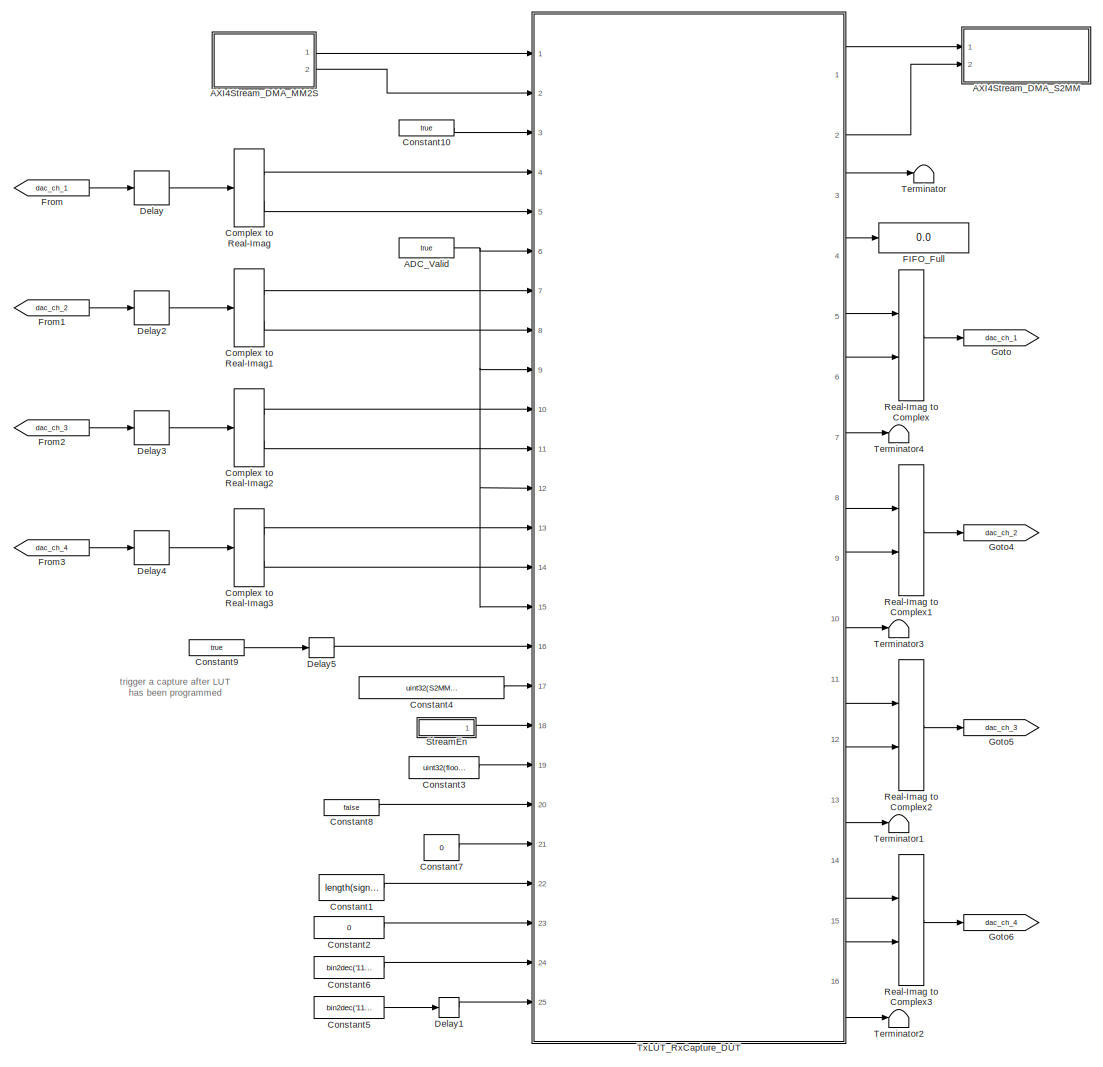
[diagram: root canvas - part 1/1, most of the canvas]
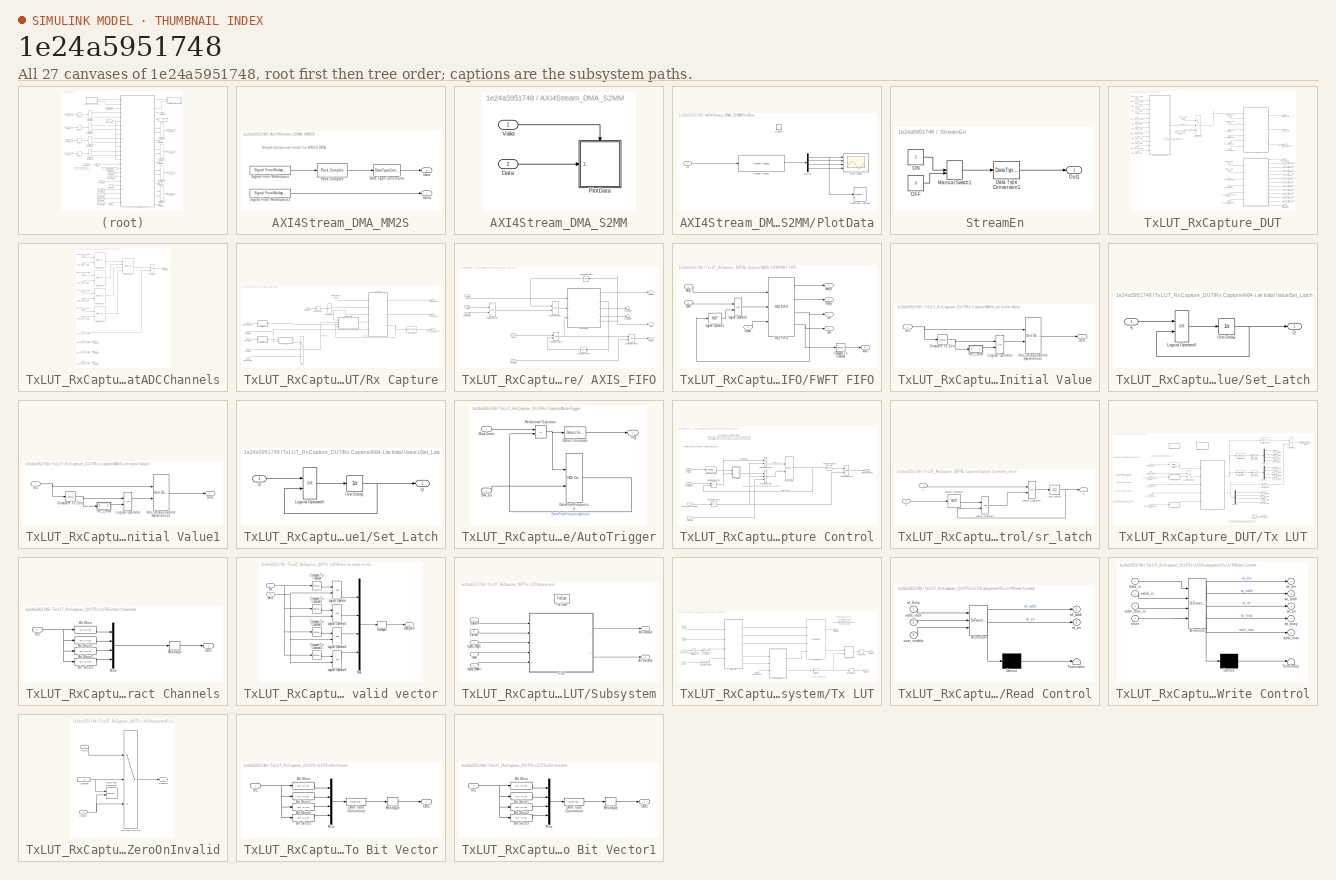
[diagram: thumbnail index - all 27 canvases of the model, root first then tree order]
MODEL slx_1e24a5951748
KIND model
CONFIG AbsTol = auto
CONFIG EnableMultiTasking = off
CONFIG FixedStep = auto
CONFIG InitFcn = model_init
CONFIG MaxStep = auto
CONFIG MinStep = auto
CONFIG PreLoadFcn = load('iq_bus_obj.mat');\nmodel_init
CONFIG RelTol = 1e-3
CONFIG SampleTimeConstraint = Unconstrained
CONFIG Solver = FixedStepDiscrete
CONFIG SolverName = FixedStepDiscrete
CONFIG StartTime = 0.0
CONFIG StopTime = 15e3
BLOCK [Constant] ADC_Valid
  SampleTime = -1
  Value = true
BLOCK [SubSystem] AXI4Stream_DMA_MM2S
  Ports = [0, 2]
  RequestExecContextInheritance = off
BLOCK [Outport] AXI4Stream_DMA_MM2S/Data
  IconDisplay = Port number
  Port = 2
  VectorParamsAs1DForOutWhenUnconnected = off
BLOCK [DataTypeConversion] AXI4Stream_DMA_MM2S/Data Type Conversion
  ConvertRealWorld = Stored Integer (SI)
  OutDataTypeStr = fixdt(0,128,0)
  RndMeth = Floor
  SaturateOnIntegerOverflow = off
BLOCK [Reference] AXI4Stream_DMA_MM2S/Pack Complex  REF=rfsoc_hdl_utils/Pack Complex  (lib defined in slx_fcaf48ee95ec)
  Ports = [1, 1]
  SourceBlock = rfsoc_hdl_utils/Pack Complex
  SourceType = Pack Complex
BLOCK [Reference] AXI4Stream_DMA_MM2S/Signal From Workspace  REF=dspsrcs4/Signal From
Workspace
  Ports = [0, 1]
  SourceBlock = dspsrcs4/Signal From\nWorkspace
  SourceProductBaseCode = DS
  SourceProductName = DSP System Toolbox
  SourceType = Signal From Workspace
BLOCK [Reference] AXI4Stream_DMA_MM2S/Signal From Workspace1  REF=dspsrcs4/Signal From
Workspace
  Ports = [0, 1]
  SourceBlock = dspsrcs4/Signal From\nWorkspace
  SourceProductBaseCode = DS
  SourceProductName = DSP System Toolbox
  SourceType = Signal From Workspace
BLOCK [Outport] AXI4Stream_DMA_MM2S/Valid
  IconDisplay = Port number
  VectorParamsAs1DForOutWhenUnconnected = off
BLOCK [SubSystem] AXI4Stream_DMA_S2MM
  Ports = [2]
  RequestExecContextInheritance = off
BLOCK [Inport] AXI4Stream_DMA_S2MM/Data
  IconDisplay = Port number
  Port = 2
BLOCK [SubSystem] AXI4Stream_DMA_S2MM/PlotData
  Ports = [1, 0, 1]
  RequestExecContextInheritance = off
BLOCK [Reference] AXI4Stream_DMA_S2MM/PlotData/Channel Unpack  REF=rfsoc_hdl_utils/Channel Unpack  (lib defined in slx_fcaf48ee95ec)
  Ports = [1, 1]
  SourceBlock = rfsoc_hdl_utils/Channel Unpack
  SourceType = Channel Unpack
BLOCK [Demux] AXI4Stream_DMA_S2MM/PlotData/Demux
  DisplayOption = bar
  Ports = [1, 4]
BLOCK [EnablePort] AXI4Stream_DMA_S2MM/PlotData/Enable
  Ports = []
BLOCK [Inport] AXI4Stream_DMA_S2MM/PlotData/In1
  IconDisplay = Port number
BLOCK [SpectrumAnalyzer] AXI4Stream_DMA_S2MM/PlotData/Spectrum Analyzer
  Ports = [1]
  ScopeSpecificationString = spbscopes.SpectrumAnalyzerBlockCfg('CurrentConfiguration', extmgr.ConfigurationSet(extmgr.Configuration('Core','General UI',true),extmgr.Configuration('Core','Source UI',true),extmgr.Configuration('Sources','Workspace',false),extmgr.Configuration('Sources','SPTool',false),extmgr.Configuration('Sources','Simulink',false),extmgr.Configuration('Sources','File',false),extmgr.Configuration('Sources','S...<+2868ch>
BLOCK [Scope] AXI4Stream_DMA_S2MM/PlotData/Time Scope
  DefaultConfigurationName = spbscopes.TimeScopeBlockCfg
  Floating = off
  NumInputPorts = 4
  Ports = [4]
  ScopeSpecificationString = spbscopes.TimeScopeBlockCfg('CurrentConfiguration', extmgr.ConfigurationSet(extmgr.Configuration('Core','General UI',true),extmgr.Configuration('Core','Source UI',true),extmgr.Configuration('Sources','WiredSimulink',true,'DataLoggingVariableName','ScopeData1'),extmgr.Configuration('Visuals','Time Domain',true,'DisplayLayoutDimensions',[4 1],'DisplayPropertyDefaults',struct('YLabelReal','Amplitude'...<+3812ch>
  UserDataPersistent = on
BLOCK [Inport] AXI4Stream_DMA_S2MM/Valid
  IconDisplay = Port number
BLOCK [ComplexToRealImag] Complex to Real-Imag
  Ports = [1, 2]
BLOCK [ComplexToRealImag] Complex to Real-Imag1
  Ports = [1, 2]
BLOCK [ComplexToRealImag] Complex to Real-Imag2
  Ports = [1, 2]
BLOCK [ComplexToRealImag] Complex to Real-Imag3
  Ports = [1, 2]
BLOCK [Constant] Constant1
  OutDataTypeStr = uint32
  SampleTime = -1
  Value = length(signal)
BLOCK [Constant] Constant10
  SampleTime = -1
  Value = true
BLOCK [Constant] Constant2
  OutDataTypeStr = boolean
  SampleTime = -1
  Value = 0
BLOCK [Constant] Constant3
  OutDataTypeStr = uint32
  SampleTime = -1
  Value = uint32(floor(FPGAClkRate/10e3))
BLOCK [Constant] Constant4
  SampleTime = -1
  Value = uint32(S2MM_frame_size)
BLOCK [Constant] Constant5
  OutDataTypeStr = uint32
  SampleTime = -1
  Value = bin2dec('1111')
BLOCK [Constant] Constant6
  OutDataTypeStr = uint32
  SampleTime = -1
  Value = bin2dec('1111')
BLOCK [Constant] Constant7
  OutDataTypeStr = fixdt(0,1,0)
  SampleTime = -1
  Value = 0
BLOCK [Constant] Constant8
  SampleTime = -1
  Value = false
BLOCK [Constant] Constant9
  SampleTime = -1
  Value = true
BLOCK [Delay] Delay
  DelayLength = 1
  InputPortMap = u0
  Ports = [1, 1]
BLOCK [Delay] Delay1
  DelayLength = length(signal)+10
  InputPortMap = u0
  Ports = [1, 1]
BLOCK [Delay] Delay2
  DelayLength = 1
  InputPortMap = u0
  Ports = [1, 1]
BLOCK [Delay] Delay3
  DelayLength = 1
  InputPortMap = u0
  Ports = [1, 1]
BLOCK [Delay] Delay4
  DelayLength = 1
  InputPortMap = u0
  Ports = [1, 1]
BLOCK [Delay] Delay5
  DelayLength = length(signal)+20
  InputPortMap = u0
  Ports = [1, 1]
BLOCK [Display] FIFO_Full
  Decimation = 1
  Ports = [1]
BLOCK [From] From
  GotoTag = dac_ch_1
BLOCK [From] From1
  GotoTag = dac_ch_2
BLOCK [From] From2
  GotoTag = dac_ch_3
BLOCK [From] From3
  GotoTag = dac_ch_4
BLOCK [Goto] Goto
  GotoTag = dac_ch_1
BLOCK [Goto] Goto4
  GotoTag = dac_ch_2
BLOCK [Goto] Goto5
  GotoTag = dac_ch_3
BLOCK [Goto] Goto6
  GotoTag = dac_ch_4
BLOCK [RealImagToComplex] Real-Imag to Complex
  Ports = [2, 1]
BLOCK [RealImagToComplex] Real-Imag to Complex1
  Ports = [2, 1]
BLOCK [RealImagToComplex] Real-Imag to Complex2
  Ports = [2, 1]
BLOCK [RealImagToComplex] Real-Imag to Complex3
  Ports = [2, 1]
BLOCK [SubSystem] StreamEn
  Ports = [0, 1]
  RequestExecContextInheritance = off
BLOCK [DataTypeConversion] StreamEn/Data Type Conversion1
  OutDataTypeStr = boolean
  RndMeth = Floor
  SaturateOnIntegerOverflow = off
BLOCK [ManualSwitch] StreamEn/Manual Switch1
BLOCK [Constant] StreamEn/OFF
  OutDataTypeStr = boolean
  SampleTime = -1
  Value = 0
BLOCK [Constant] StreamEn/ON
  OutDataTypeStr = boolean
  SampleTime = -1
BLOCK [Outport] StreamEn/Out1
  IconDisplay = Port number
  VectorParamsAs1DForOutWhenUnconnected = off
BLOCK [Terminator] Terminator
BLOCK [Terminator] Terminator1
BLOCK [Terminator] Terminator2
BLOCK [Terminator] Terminator3
BLOCK [Terminator] Terminator4
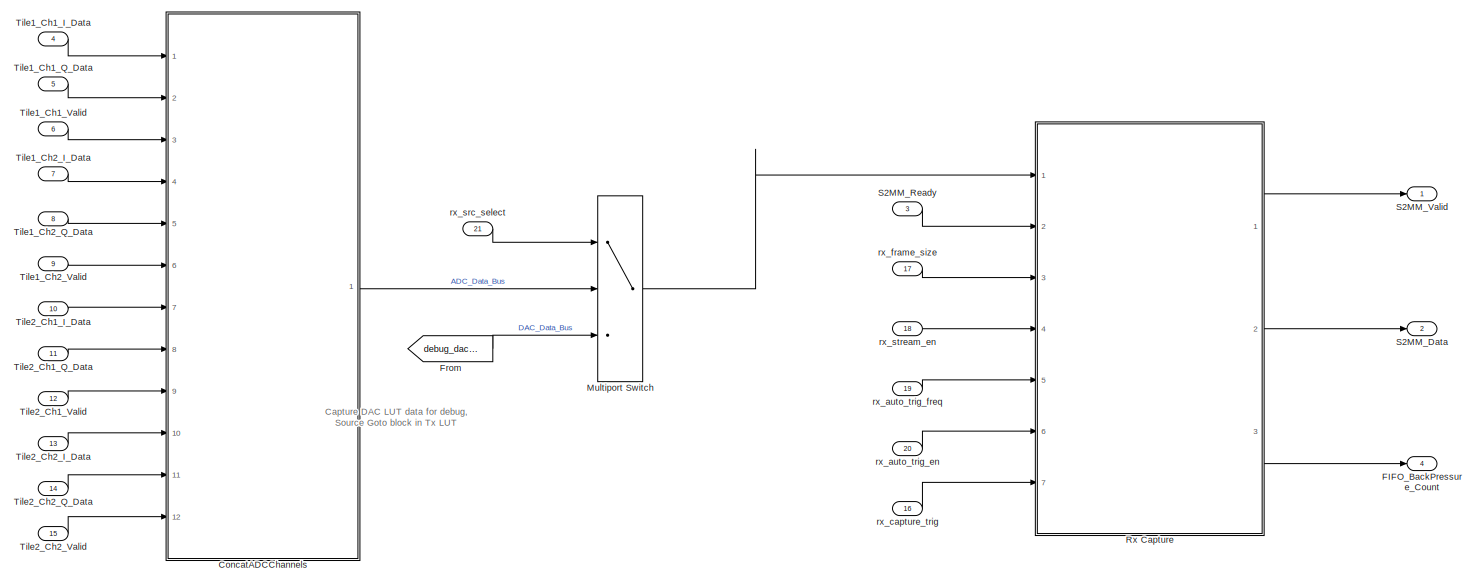
[diagram: TxLUT_RxCapture_DUT - part 1/2, full width, top band]
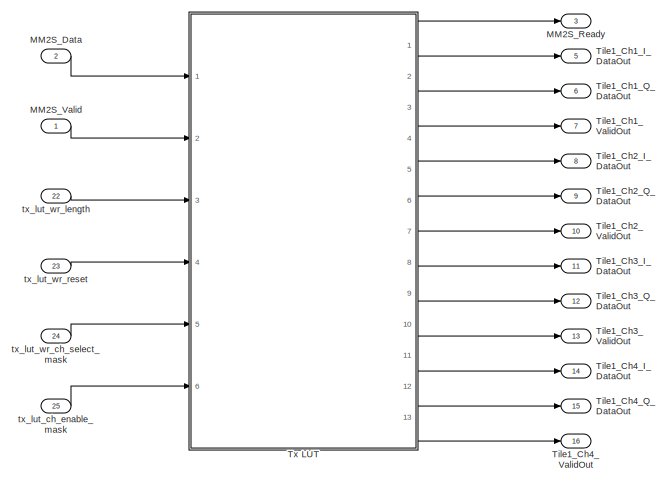
[diagram: TxLUT_RxCapture_DUT - part 2/2, bottom right region]
BLOCK [SubSystem] TxLUT_RxCapture_DUT
  Ports = [25, 16]
  RequestExecContextInheritance = off
  TreatAsAtomicUnit = on
  TreatAsGroupedWhenPropagatingVariantConditions = off
BLOCK [SubSystem] TxLUT_RxCapture_DUT/ConcatADCChannels
  Ports = [12, 1]
  RequestExecContextInheritance = off
BLOCK [Reference] TxLUT_RxCapture_DUT/ConcatADCChannels/Bit Concat  REF=hdlsllib/Logic and Bit
Operations/Bit Concat
  Ports = [2, 1]
  SourceBlock = hdlsllib/Logic and Bit\nOperations/Bit Concat
  SourceProductBaseCode = SL
  SourceProductName = Simulink
  SourceType = Bit Concat
BLOCK [Reference] TxLUT_RxCapture_DUT/ConcatADCChannels/Bit Concat1  REF=hdlsllib/Logic and Bit
Operations/Bit Concat
  Ports = [4, 1]
  SourceBlock = hdlsllib/Logic and Bit\nOperations/Bit Concat
  SourceProductBaseCode = SL
  SourceProductName = Simulink
  SourceType = Bit Concat
BLOCK [Reference] TxLUT_RxCapture_DUT/ConcatADCChannels/Bit Concat2  REF=hdlsllib/Logic and Bit
Operations/Bit Concat
  Ports = [2, 1]
  SourceBlock = hdlsllib/Logic and Bit\nOperations/Bit Concat
  SourceProductBaseCode = SL
  SourceProductName = Simulink
  SourceType = Bit Concat
BLOCK [Reference] TxLUT_RxCapture_DUT/ConcatADCChannels/Bit Concat3  REF=hdlsllib/Logic and Bit
Operations/Bit Concat
  Ports = [2, 1]
  SourceBlock = hdlsllib/Logic and Bit\nOperations/Bit Concat
  SourceProductBaseCode = SL
  SourceProductName = Simulink
  SourceType = Bit Concat
BLOCK [Reference] TxLUT_RxCapture_DUT/ConcatADCChannels/Bit Concat4  REF=hdlsllib/Logic and Bit
Operations/Bit Concat
  Ports = [2, 1]
  SourceBlock = hdlsllib/Logic and Bit\nOperations/Bit Concat
  SourceProductBaseCode = SL
  SourceProductName = Simulink
  SourceType = Bit Concat
BLOCK [Outport] TxLUT_RxCapture_DUT/ConcatADCChannels/DataBus
  IconDisplay = Port number
  VectorParamsAs1DForOutWhenUnconnected = off
BLOCK [Terminator] TxLUT_RxCapture_DUT/ConcatADCChannels/Terminator2
BLOCK [Terminator] TxLUT_RxCapture_DUT/ConcatADCChannels/Terminator4
BLOCK [Terminator] TxLUT_RxCapture_DUT/ConcatADCChannels/Terminator6
BLOCK [Inport] TxLUT_RxCapture_DUT/ConcatADCChannels/Tile1_Ch1_I_Data 
  IconDisplay = Port number
BLOCK [Inport] TxLUT_RxCapture_DUT/ConcatADCChannels/Tile1_Ch1_Q_Data
  IconDisplay = Port number
  Port = 2
BLOCK [Inport] TxLUT_RxCapture_DUT/ConcatADCChannels/Tile1_Ch1_Q_Valid
  IconDisplay = Port number
  Port = 3
BLOCK [Inport] TxLUT_RxCapture_DUT/ConcatADCChannels/Tile1_Ch2_I_Data
  IconDisplay = Port number
  Port = 4
BLOCK [Inport] TxLUT_RxCapture_DUT/ConcatADCChannels/Tile1_Ch2_Q_Data
  IconDisplay = Port number
  Port = 5
BLOCK [Inport] TxLUT_RxCapture_DUT/ConcatADCChannels/Tile1_Ch2_Q_Valid
  IconDisplay = Port number
  Port = 6
BLOCK [Inport] TxLUT_RxCapture_DUT/ConcatADCChannels/Tile2_Ch1_I_Data
  IconDisplay = Port number
  Port = 7
BLOCK [Inport] TxLUT_RxCapture_DUT/ConcatADCChannels/Tile2_Ch1_Q_Data
  IconDisplay = Port number
  Port = 8
BLOCK [Inport] TxLUT_RxCapture_DUT/ConcatADCChannels/Tile2_Ch1_Q_Valid
  IconDisplay = Port number
  Port = 9
BLOCK [Inport] TxLUT_RxCapture_DUT/ConcatADCChannels/Tile2_Ch2_I_Data
  IconDisplay = Port number
  Port = 10
BLOCK [Inport] TxLUT_RxCapture_DUT/ConcatADCChannels/Tile2_Ch2_Q_Data
  IconDisplay = Port number
  Port = 11
BLOCK [Inport] TxLUT_RxCapture_DUT/ConcatADCChannels/Tile2_Ch2_Q_Valid
  IconDisplay = Port number
  Port = 12
BLOCK [Reference] TxLUT_RxCapture_DUT/ConcatADCChannels/To Data Bus  REF=rfsoc_hdl_utils/To Data Bus  (lib defined in slx_fcaf48ee95ec)
  Ports = [2, 1]
  SourceBlock = rfsoc_hdl_utils/To Data Bus
  SourceType = To Data Bus
BLOCK [Outport] TxLUT_RxCapture_DUT/FIFO_BackPressure_Count
  IconDisplay = Port number
  Port = 4
  VectorParamsAs1DForOutWhenUnconnected = off
BLOCK [From] TxLUT_RxCapture_DUT/From
  GotoTag = debug_dac_data
  TagVisibility = global
BLOCK [Inport] TxLUT_RxCapture_DUT/MM2S_Data
  IconDisplay = Port number
  Port = 2
BLOCK [Outport] TxLUT_RxCapture_DUT/MM2S_Ready
  IconDisplay = Port number
  Port = 3
  VectorParamsAs1DForOutWhenUnconnected = off
BLOCK [Inport] TxLUT_RxCapture_DUT/MM2S_Valid
  IconDisplay = Port number
BLOCK [MultiPortSwitch] TxLUT_RxCapture_DUT/Multiport Switch
  DataPortOrder = Zero-based contiguous
  InputSameDT = off
  Inputs = 2
  Ports = [3, 1]
  SaturateOnIntegerOverflow = off
  zeroidx = on
BLOCK [SubSystem] TxLUT_RxCapture_DUT/Rx Capture
  Ports = [7, 3]
  RequestExecContextInheritance = off
BLOCK [SubSystem] TxLUT_RxCapture_DUT/Rx Capture/ AXIS_FIFO
  Ports = [5, 3]
  RequestExecContextInheritance = off
BLOCK [Outport] TxLUT_RxCapture_DUT/Rx Capture/ AXIS_FIFO/AFull
  IconDisplay = Port number
  Port = 3
  VectorParamsAs1DForOutWhenUnconnected = off
BLOCK [Inport] TxLUT_RxCapture_DUT/Rx Capture/ AXIS_FIFO/CaptureEn
  IconDisplay = Port number
  Port = 4
BLOCK [SubSystem] TxLUT_RxCapture_DUT/Rx Capture/ AXIS_FIFO/FWFT FIFO
  Ports = [3, 5]
  RequestExecContextInheritance = off
BLOCK [Reference] TxLUT_RxCapture_DUT/Rx Capture/ AXIS_FIFO/FWFT FIFO/Compare To Constant  REF=simulink/Logic and Bit
Operations/Compare
To Constant
  Ports = [1, 1]
  SourceBlock = simulink/Logic and Bit\nOperations/Compare\nTo Constant
  SourceProductBaseCode = SL
  SourceProductName = Simulink
  SourceType = Compare To Constant
BLOCK [Reference] TxLUT_RxCapture_DUT/Rx Capture/ AXIS_FIFO/FWFT FIFO/HDL FIFO  REF=hdlsllib/HDL RAMs/HDL FIFO
  Ports = [3, 4]
  SourceBlock = hdlsllib/HDL RAMs/HDL FIFO
  SourceProductBaseCode = HD
  SourceProductName = HDL Coder
  SourceType = HDL_FIFO
BLOCK [Logic] TxLUT_RxCapture_DUT/Rx Capture/ AXIS_FIFO/FWFT FIFO/Logical Operator1
  AllPortsSameDT = off
  IconShape = distinctive
  Operator = NOT
  OutDataTypeStr = boolean
  Ports = [1, 1]
BLOCK [Logic] TxLUT_RxCapture_DUT/Rx Capture/ AXIS_FIFO/FWFT FIFO/Logical Operator2
  AllPortsSameDT = off
  IconShape = distinctive
  OutDataTypeStr = boolean
  Ports = [2, 1]
BLOCK [Outport] TxLUT_RxCapture_DUT/Rx Capture/ AXIS_FIFO/FWFT FIFO/afull
  IconDisplay = Port number
  Port = 5
  VectorParamsAs1DForOutWhenUnconnected = off
BLOCK [Inport] TxLUT_RxCapture_DUT/Rx Capture/ AXIS_FIFO/FWFT FIFO/data_i
  IconDisplay = Port number
BLOCK [Outport] TxLUT_RxCapture_DUT/Rx Capture/ AXIS_FIFO/FWFT FIFO/data_o
  IconDisplay = Port number
  VectorParamsAs1DForOutWhenUnconnected = off
BLOCK [Outport] TxLUT_RxCapture_DUT/Rx Capture/ AXIS_FIFO/FWFT FIFO/empty
  IconDisplay = Port number
  Port = 2
  VectorParamsAs1DForOutWhenUnconnected = off
BLOCK [Outport] TxLUT_RxCapture_DUT/Rx Capture/ AXIS_FIFO/FWFT FIFO/full
  IconDisplay = Port number
  Port = 4
  VectorParamsAs1DForOutWhenUnconnected = off
BLOCK [Outport] TxLUT_RxCapture_DUT/Rx Capture/ AXIS_FIFO/FWFT FIFO/num
  IconDisplay = Port number
  Port = 3
  VectorParamsAs1DForOutWhenUnconnected = off
BLOCK [Inport] TxLUT_RxCapture_DUT/Rx Capture/ AXIS_FIFO/FWFT FIFO/push
  IconDisplay = Port number
  Port = 2
BLOCK [Inport] TxLUT_RxCapture_DUT/Rx Capture/ AXIS_FIFO/FWFT FIFO/rd_ack
  IconDisplay = Port number
  Port = 3
BLOCK [Logic] TxLUT_RxCapture_DUT/Rx Capture/ AXIS_FIFO/Logical Operator
  AllPortsSameDT = off
  IconShape = distinctive
  OutDataTypeStr = boolean
  Ports = [2, 1]
BLOCK [Logic] TxLUT_RxCapture_DUT/Rx Capture/ AXIS_FIFO/Logical Operator1
  AllPortsSameDT = off
  IconShape = distinctive
  OutDataTypeStr = boolean
  Ports = [2, 1]
BLOCK [Logic] TxLUT_RxCapture_DUT/Rx Capture/ AXIS_FIFO/Logical Operator4
  AllPortsSameDT = off
  IconShape = distinctive
  Operator = NOT
  OutDataTypeStr = boolean
  Ports = [1, 1]
BLOCK [Logic] TxLUT_RxCapture_DUT/Rx Capture/ AXIS_FIFO/Logical Operator5
  AllPortsSameDT = off
  IconShape = distinctive
  OutDataTypeStr = boolean
  Ports = [2, 1]
BLOCK [Logic] TxLUT_RxCapture_DUT/Rx Capture/ AXIS_FIFO/Logical Operator6
  AllPortsSameDT = off
  IconShape = distinctive
  Operator = NOT
  OutDataTypeStr = boolean
  Ports = [1, 1]
BLOCK [Logic] TxLUT_RxCapture_DUT/Rx Capture/ AXIS_FIFO/Logical Operator7
  AllPortsSameDT = off
  IconShape = distinctive
  OutDataTypeStr = boolean
  Ports = [2, 1]
BLOCK [Inport] TxLUT_RxCapture_DUT/Rx Capture/ AXIS_FIFO/StreamEn
  IconDisplay = Port number
  Port = 5
BLOCK [Inport] TxLUT_RxCapture_DUT/Rx Capture/ AXIS_FIFO/TData
  IconDisplay = Port number
  Port = 2
BLOCK [Outport] TxLUT_RxCapture_DUT/Rx Capture/ AXIS_FIFO/TDataOut
  IconDisplay = Port number
  VectorParamsAs1DForOutWhenUnconnected = off
BLOCK [Inport] TxLUT_RxCapture_DUT/Rx Capture/ AXIS_FIFO/TReady
  IconDisplay = Port number
BLOCK [Inport] TxLUT_RxCapture_DUT/Rx Capture/ AXIS_FIFO/TValid
  IconDisplay = Port number
  Port = 3
BLOCK [Terminator] TxLUT_RxCapture_DUT/Rx Capture/ AXIS_FIFO/Terminator
BLOCK [Terminator] TxLUT_RxCapture_DUT/Rx Capture/ AXIS_FIFO/Terminator1
BLOCK [Outport] TxLUT_RxCapture_DUT/Rx Capture/ AXIS_FIFO/ValidOut
  IconDisplay = Port number
  Port = 2
  VectorParamsAs1DForOutWhenUnconnected = off
BLOCK [SubSystem] TxLUT_RxCapture_DUT/Rx Capture/AXI4-Lite Initial Value
  Ports = [1, 1]
  RequestExecContextInheritance = off
BLOCK [Reference] TxLUT_RxCapture_DUT/Rx Capture/AXI4-Lite Initial Value/Compare To Zero  REF=simulink/Logic and Bit
Operations/Compare
To Zero
  Ports = [1, 1]
  SourceBlock = simulink/Logic and Bit\nOperations/Compare\nTo Zero
  SourceProductBaseCode = SL
  SourceProductName = Simulink
  SourceType = Compare To Zero
BLOCK [Inport] TxLUT_RxCapture_DUT/Rx Capture/AXI4-Lite Initial Value/In1
  IconDisplay = Port number
BLOCK [Logic] TxLUT_RxCapture_DUT/Rx Capture/AXI4-Lite Initial Value/Logical Operator
  AllPortsSameDT = off
  IconShape = distinctive
  Operator = OR
  OutDataTypeStr = boolean
  Ports = [2, 1]
BLOCK [Outport] TxLUT_RxCapture_DUT/Rx Capture/AXI4-Lite Initial Value/Out1
  IconDisplay = Port number
  VectorParamsAs1DForOutWhenUnconnected = off
BLOCK [SubSystem] TxLUT_RxCapture_DUT/Rx Capture/AXI4-Lite Initial Value/Set_Latch
  Ports = [1, 1]
  RequestExecContextInheritance = off
BLOCK [Logic] TxLUT_RxCapture_DUT/Rx Capture/AXI4-Lite Initial Value/Set_Latch/Logical Operator5
  AllPortsSameDT = off
  IconShape = distinctive
  Operator = OR
  OutDataTypeStr = boolean
  Ports = [2, 1]
BLOCK [Outport] TxLUT_RxCapture_DUT/Rx Capture/AXI4-Lite Initial Value/Set_Latch/Q
  IconDisplay = Port number
  VectorParamsAs1DForOutWhenUnconnected = off
BLOCK [Inport] TxLUT_RxCapture_DUT/Rx Capture/AXI4-Lite Initial Value/Set_Latch/S
  IconDisplay = Port number
BLOCK [UnitDelay] TxLUT_RxCapture_DUT/Rx Capture/AXI4-Lite Initial Value/Set_Latch/Unit Delay
  HasFrameUpgradeWarning = on
  SampleTime = -1
BLOCK [Reference] TxLUT_RxCapture_DUT/Rx Capture/AXI4-Lite Initial Value/Unit Delay Enabled Synchronous  REF=hdlsllib/Discrete/Unit Delay Enabled
Synchronous
  Ports = [2, 1]
  SourceBlock = hdlsllib/Discrete/Unit Delay Enabled\nSynchronous
  SourceProductBaseCode = HD
  SourceProductName = HDL Coder
  SourceType = Unit Delay Enabled Synchronous
BLOCK [SubSystem] TxLUT_RxCapture_DUT/Rx Capture/AXI4-Lite Initial Value1
  Ports = [1, 1]
  RequestExecContextInheritance = off
BLOCK [Reference] TxLUT_RxCapture_DUT/Rx Capture/AXI4-Lite Initial Value1/Compare To Zero  REF=simulink/Logic and Bit
Operations/Compare
To Zero
  Ports = [1, 1]
  SourceBlock = simulink/Logic and Bit\nOperations/Compare\nTo Zero
  SourceProductBaseCode = SL
  SourceProductName = Simulink
  SourceType = Compare To Zero
BLOCK [Inport] TxLUT_RxCapture_DUT/Rx Capture/AXI4-Lite Initial Value1/In1
  IconDisplay = Port number
BLOCK [Logic] TxLUT_RxCapture_DUT/Rx Capture/AXI4-Lite Initial Value1/Logical Operator
  AllPortsSameDT = off
  IconShape = distinctive
  Operator = OR
  OutDataTypeStr = boolean
  Ports = [2, 1]
BLOCK [Outport] TxLUT_RxCapture_DUT/Rx Capture/AXI4-Lite Initial Value1/Out1
  IconDisplay = Port number
  VectorParamsAs1DForOutWhenUnconnected = off
BLOCK [SubSystem] TxLUT_RxCapture_DUT/Rx Capture/AXI4-Lite Initial Value1/Set_Latch
  Ports = [1, 1]
  RequestExecContextInheritance = off
BLOCK [Logic] TxLUT_RxCapture_DUT/Rx Capture/AXI4-Lite Initial Value1/Set_Latch/Logical Operator5
  AllPortsSameDT = off
  IconShape = distinctive
  Operator = OR
  OutDataTypeStr = boolean
  Ports = [2, 1]
BLOCK [Outport] TxLUT_RxCapture_DUT/Rx Capture/AXI4-Lite Initial Value1/Set_Latch/Q
  IconDisplay = Port number
  VectorParamsAs1DForOutWhenUnconnected = off
BLOCK [Inport] TxLUT_RxCapture_DUT/Rx Capture/AXI4-Lite Initial Value1/Set_Latch/S
  IconDisplay = Port number
BLOCK [UnitDelay] TxLUT_RxCapture_DUT/Rx Capture/AXI4-Lite Initial Value1/Set_Latch/Unit Delay
  HasFrameUpgradeWarning = on
  SampleTime = -1
BLOCK [Reference] TxLUT_RxCapture_DUT/Rx Capture/AXI4-Lite Initial Value1/Unit Delay Enabled Synchronous  REF=hdlsllib/Discrete/Unit Delay Enabled
Synchronous
  Ports = [2, 1]
  SourceBlock = hdlsllib/Discrete/Unit Delay Enabled\nSynchronous
  SourceProductBaseCode = HD
  SourceProductName = HDL Coder
  SourceType = Unit Delay Enabled Synchronous
BLOCK [Inport] TxLUT_RxCapture_DUT/Rx Capture/AutoTrigEn
  IconDisplay = Port number
  Port = 6
BLOCK [SubSystem] TxLUT_RxCapture_DUT/Rx Capture/AutoTrigger
  Ports = [2, 1]
  RequestExecContextInheritance = off
BLOCK [Reference] TxLUT_RxCapture_DUT/Rx Capture/AutoTrigger/DataPushFrequency  REF=hdlsllib/Sources/HDL Counter
  Ports = [2, 1]
  SourceBlock = hdlsllib/Sources/HDL Counter
  SourceProductBaseCode = HD
  SourceProductName = HDL Coder
  SourceType = HDL Counter
BLOCK [Reference] TxLUT_RxCapture_DUT/Rx Capture/AutoTrigger/Detect Increase  REF=simulink/Logic and Bit
Operations/Detect
Increase
  Ports = [1, 1]
  SourceBlock = simulink/Logic and Bit\nOperations/Detect\nIncrease
  SourceProductBaseCode = SL
  SourceProductName = Simulink
  SourceType = Detect Increase
BLOCK [Inport] TxLUT_RxCapture_DUT/Rx Capture/AutoTrigger/MaxCount
  IconDisplay = Port number
BLOCK [RelationalOperator] TxLUT_RxCapture_DUT/Rx Capture/AutoTrigger/Relational Operator
  InputSameDT = off
  Operator = ==
  OutDataTypeStr = boolean
  Ports = [2, 1]
  RndMeth = Simplest
BLOCK [Inport] TxLUT_RxCapture_DUT/Rx Capture/AutoTrigger/SW_en
  IconDisplay = Port number
  Port = 2
BLOCK [Outport] TxLUT_RxCapture_DUT/Rx Capture/AutoTrigger/Trig
  IconDisplay = Port number
  VectorParamsAs1DForOutWhenUnconnected = off
BLOCK [SubSystem] TxLUT_RxCapture_DUT/Rx Capture/Capture Control
  Ports = [4, 1]
  RequestExecContextInheritance = off
BLOCK [Inport] TxLUT_RxCapture_DUT/Rx Capture/Capture Control/BackPressureFlag
  IconDisplay = Port number
  Port = 4
BLOCK [Reference] TxLUT_RxCapture_DUT/Rx Capture/Capture Control/Compare To Zero  REF=simulink/Logic and Bit
Operations/Compare
To Zero
  Ports = [1, 1]
  SourceBlock = simulink/Logic and Bit\nOperations/Compare\nTo Zero
  SourceProductBaseCode = SL
  SourceProductName = Simulink
  SourceType = Compare To Zero
BLOCK [Outport] TxLUT_RxCapture_DUT/Rx Capture/Capture Control/DataCaptureEn
  IconDisplay = Port number
  VectorParamsAs1DForOutWhenUnconnected = off
BLOCK [Inport] TxLUT_RxCapture_DUT/Rx Capture/Capture Control/DataValid
  IconDisplay = Port number
BLOCK [Reference] TxLUT_RxCapture_DUT/Rx Capture/Capture Control/Detect Increase  REF=simulink/Logic and Bit
Operations/Detect
Increase
  Ports = [1, 1]
  SourceBlock = simulink/Logic and Bit\nOperations/Detect\nIncrease
  SourceProductBaseCode = SL
  SourceProductName = Simulink
  SourceType = Detect Increase
BLOCK [Inport] TxLUT_RxCapture_DUT/Rx Capture/Capture Control/FrameSize
  IconDisplay = Port number
  Port = 3
BLOCK [Reference] TxLUT_RxCapture_DUT/Rx Capture/Capture Control/HDL Counter  REF=hdlsllib/Sources/HDL Counter
  Ports = [2, 1]
  SourceBlock = hdlsllib/Sources/HDL Counter
  SourceProductBaseCode = HD
  SourceProductName = HDL Coder
  SourceType = HDL Counter
BLOCK [Logic] TxLUT_RxCapture_DUT/Rx Capture/Capture Control/Logical Operator
  AllPortsSameDT = off
  IconShape = distinctive
  Inputs = 3
  OutDataTypeStr = boolean
  Ports = [3, 1]
BLOCK [Logic] TxLUT_RxCapture_DUT/Rx Capture/Capture Control/Logical Operator1
  AllPortsSameDT = off
  IconShape = distinctive
  OutDataTypeStr = boolean
  Ports = [2, 1]
BLOCK [Logic] TxLUT_RxCapture_DUT/Rx Capture/Capture Control/Logical Operator2
  AllPortsSameDT = off
  IconShape = distinctive
  OutDataTypeStr = boolean
  Ports = [2, 1]
BLOCK [Logic] TxLUT_RxCapture_DUT/Rx Capture/Capture Control/Logical Operator6
  AllPortsSameDT = off
  IconShape = distinctive
  Operator = NOT
  OutDataTypeStr = boolean
  Ports = [1, 1]
BLOCK [RelationalOperator] TxLUT_RxCapture_DUT/Rx Capture/Capture Control/Relational Operator
  InputSameDT = off
  Operator = ==
  OutDataTypeStr = boolean
  Ports = [2, 1]
  RndMeth = Simplest
BLOCK [Inport] TxLUT_RxCapture_DUT/Rx Capture/Capture Control/Trigger
  IconDisplay = Port number
  Port = 2
BLOCK [SubSystem] TxLUT_RxCapture_DUT/Rx Capture/Capture Control/sr_latch
  Ports = [2, 1]
  RequestExecContextInheritance = off
BLOCK [Logic] TxLUT_RxCapture_DUT/Rx Capture/Capture Control/sr_latch/Logical Operator1
  AllPortsSameDT = off
  IconShape = distinctive
  OutDataTypeStr = boolean
  Ports = [2, 1]
BLOCK [Logic] TxLUT_RxCapture_DUT/Rx Capture/Capture Control/sr_latch/Logical Operator2
  AllPortsSameDT = off
  IconShape = distinctive
  Operator = NOT
  OutDataTypeStr = boolean
  Ports = [1, 1]
BLOCK [Logic] TxLUT_RxCapture_DUT/Rx Capture/Capture Control/sr_latch/Logical Operator9
  AllPortsSameDT = off
  IconShape = distinctive
  Operator = OR
  OutDataTypeStr = boolean
  Ports = [2, 1]
BLOCK [Outport] TxLUT_RxCapture_DUT/Rx Capture/Capture Control/sr_latch/Q
  IconDisplay = Port number
  VectorParamsAs1DForOutWhenUnconnected = off
BLOCK [Inport] TxLUT_RxCapture_DUT/Rx Capture/Capture Control/sr_latch/R
  IconDisplay = Port number
  Port = 2
BLOCK [Inport] TxLUT_RxCapture_DUT/Rx Capture/Capture Control/sr_latch/S
  IconDisplay = Port number
BLOCK [UnitDelay] TxLUT_RxCapture_DUT/Rx Capture/Capture Control/sr_latch/Unit Delay1
  HasFrameUpgradeWarning = on
  SampleTime = -1
BLOCK [Inport] TxLUT_RxCapture_DUT/Rx Capture/DataBusIn
  IconDisplay = Port number
BLOCK [Outport] TxLUT_RxCapture_DUT/Rx Capture/FIFO_BackPressure_Count
  IconDisplay = Port number
  Port = 3
  VectorParamsAs1DForOutWhenUnconnected = off
BLOCK [Inport] TxLUT_RxCapture_DUT/Rx Capture/FrameSizeInput
  IconDisplay = Port number
  Port = 3
BLOCK [Reference] TxLUT_RxCapture_DUT/Rx Capture/From Data Bus  REF=rfsoc_hdl_utils/From Data Bus  (lib defined in slx_fcaf48ee95ec)
  Ports = [1, 2]
  SourceBlock = rfsoc_hdl_utils/From Data Bus
  SourceType = From Data Bus
BLOCK [Reference] TxLUT_RxCapture_DUT/Rx Capture/HDL Counter  REF=hdlsllib/Sources/HDL Counter
  Ports = [1, 1]
  SourceBlock = hdlsllib/Sources/HDL Counter
  SourceProductBaseCode = SL
  SourceProductName = Simulink
  SourceType = HDL Counter
BLOCK [Delay] TxLUT_RxCapture_DUT/Rx Capture/Pipeline Delay
  DelayLength = 1
  InitialCondition = 0
  InputPortMap = u0
  Ports = [1, 1]
BLOCK [Outport] TxLUT_RxCapture_DUT/Rx Capture/S2MM_Data
  IconDisplay = Port number
  Port = 2
  VectorParamsAs1DForOutWhenUnconnected = off
BLOCK [Inport] TxLUT_RxCapture_DUT/Rx Capture/S2MM_Ready
  IconDisplay = Port number
  Port = 2
BLOCK [Outport] TxLUT_RxCapture_DUT/Rx Capture/S2MM_Valid
  IconDisplay = Port number
  VectorParamsAs1DForOutWhenUnconnected = off
BLOCK [Inport] TxLUT_RxCapture_DUT/Rx Capture/StreamEn
  IconDisplay = Port number
  Port = 4
BLOCK [Switch] TxLUT_RxCapture_DUT/Rx Capture/Switch
  Criteria = u2 > Threshold
  InputSameDT = off
  SaturateOnIntegerOverflow = off
BLOCK [Inport] TxLUT_RxCapture_DUT/Rx Capture/TriggerCapture
  IconDisplay = Port number
  Port = 7
BLOCK [Inport] TxLUT_RxCapture_DUT/Rx Capture/TriggerFreq
  IconDisplay = Port number
  Port = 5
BLOCK [Outport] TxLUT_RxCapture_DUT/S2MM_Data
  IconDisplay = Port number
  Port = 2
  VectorParamsAs1DForOutWhenUnconnected = off
BLOCK [Inport] TxLUT_RxCapture_DUT/S2MM_Ready
  IconDisplay = Port number
  Port = 3
BLOCK [Outport] TxLUT_RxCapture_DUT/S2MM_Valid
  IconDisplay = Port number
  VectorParamsAs1DForOutWhenUnconnected = off
BLOCK [Inport] TxLUT_RxCapture_DUT/Tile1_Ch1_I_Data 
  IconDisplay = Port number
  Port = 4
BLOCK [Outport] TxLUT_RxCapture_DUT/Tile1_Ch1_I_DataOut
  IconDisplay = Port number
  Port = 5
  VectorParamsAs1DForOutWhenUnconnected = off
BLOCK [Inport] TxLUT_RxCapture_DUT/Tile1_Ch1_Q_Data
  IconDisplay = Port number
  Port = 5
BLOCK [Outport] TxLUT_RxCapture_DUT/Tile1_Ch1_Q_DataOut
  IconDisplay = Port number
  Port = 6
  VectorParamsAs1DForOutWhenUnconnected = off
BLOCK [Inport] TxLUT_RxCapture_DUT/Tile1_Ch1_Valid
  IconDisplay = Port number
  Port = 6
BLOCK [Outport] TxLUT_RxCapture_DUT/Tile1_Ch1_ValidOut
  IconDisplay = Port number
  Port = 7
  VectorParamsAs1DForOutWhenUnconnected = off
BLOCK [Inport] TxLUT_RxCapture_DUT/Tile1_Ch2_I_Data
  IconDisplay = Port number
  Port = 7
BLOCK [Outport] TxLUT_RxCapture_DUT/Tile1_Ch2_I_DataOut
  IconDisplay = Port number
  Port = 8
  VectorParamsAs1DForOutWhenUnconnected = off
BLOCK [Inport] TxLUT_RxCapture_DUT/Tile1_Ch2_Q_Data
  IconDisplay = Port number
  Port = 8
BLOCK [Outport] TxLUT_RxCapture_DUT/Tile1_Ch2_Q_DataOut
  IconDisplay = Port number
  Port = 9
  VectorParamsAs1DForOutWhenUnconnected = off
BLOCK [Inport] TxLUT_RxCapture_DUT/Tile1_Ch2_Valid
  IconDisplay = Port number
  Port = 9
BLOCK [Outport] TxLUT_RxCapture_DUT/Tile1_Ch2_ValidOut
  IconDisplay = Port number
  Port = 10
  VectorParamsAs1DForOutWhenUnconnected = off
BLOCK [Outport] TxLUT_RxCapture_DUT/Tile1_Ch3_I_DataOut
  IconDisplay = Port number
  Port = 11
  VectorParamsAs1DForOutWhenUnconnected = off
BLOCK [Outport] TxLUT_RxCapture_DUT/Tile1_Ch3_Q_DataOut
  IconDisplay = Port number
  Port = 12
  VectorParamsAs1DForOutWhenUnconnected = off
BLOCK [Outport] TxLUT_RxCapture_DUT/Tile1_Ch3_ValidOut
  IconDisplay = Port number
  Port = 13
  VectorParamsAs1DForOutWhenUnconnected = off
BLOCK [Outport] TxLUT_RxCapture_DUT/Tile1_Ch4_I_DataOut
  IconDisplay = Port number
  Port = 14
  VectorParamsAs1DForOutWhenUnconnected = off
BLOCK [Outport] TxLUT_RxCapture_DUT/Tile1_Ch4_Q_DataOut
  IconDisplay = Port number
  Port = 15
  VectorParamsAs1DForOutWhenUnconnected = off
BLOCK [Outport] TxLUT_RxCapture_DUT/Tile1_Ch4_ValidOut
  IconDisplay = Port number
  Port = 16
  VectorParamsAs1DForOutWhenUnconnected = off
BLOCK [Inport] TxLUT_RxCapture_DUT/Tile2_Ch1_I_Data
  IconDisplay = Port number
  Port = 10
BLOCK [Inport] TxLUT_RxCapture_DUT/Tile2_Ch1_Q_Data
  IconDisplay = Port number
  Port = 11
BLOCK [Inport] TxLUT_RxCapture_DUT/Tile2_Ch1_Valid
  IconDisplay = Port number
  Port = 12
BLOCK [Inport] TxLUT_RxCapture_DUT/Tile2_Ch2_I_Data
  IconDisplay = Port number
  Port = 13
BLOCK [Inport] TxLUT_RxCapture_DUT/Tile2_Ch2_Q_Data
  IconDisplay = Port number
  Port = 14
BLOCK [Inport] TxLUT_RxCapture_DUT/Tile2_Ch2_Valid
  IconDisplay = Port number
  Port = 15
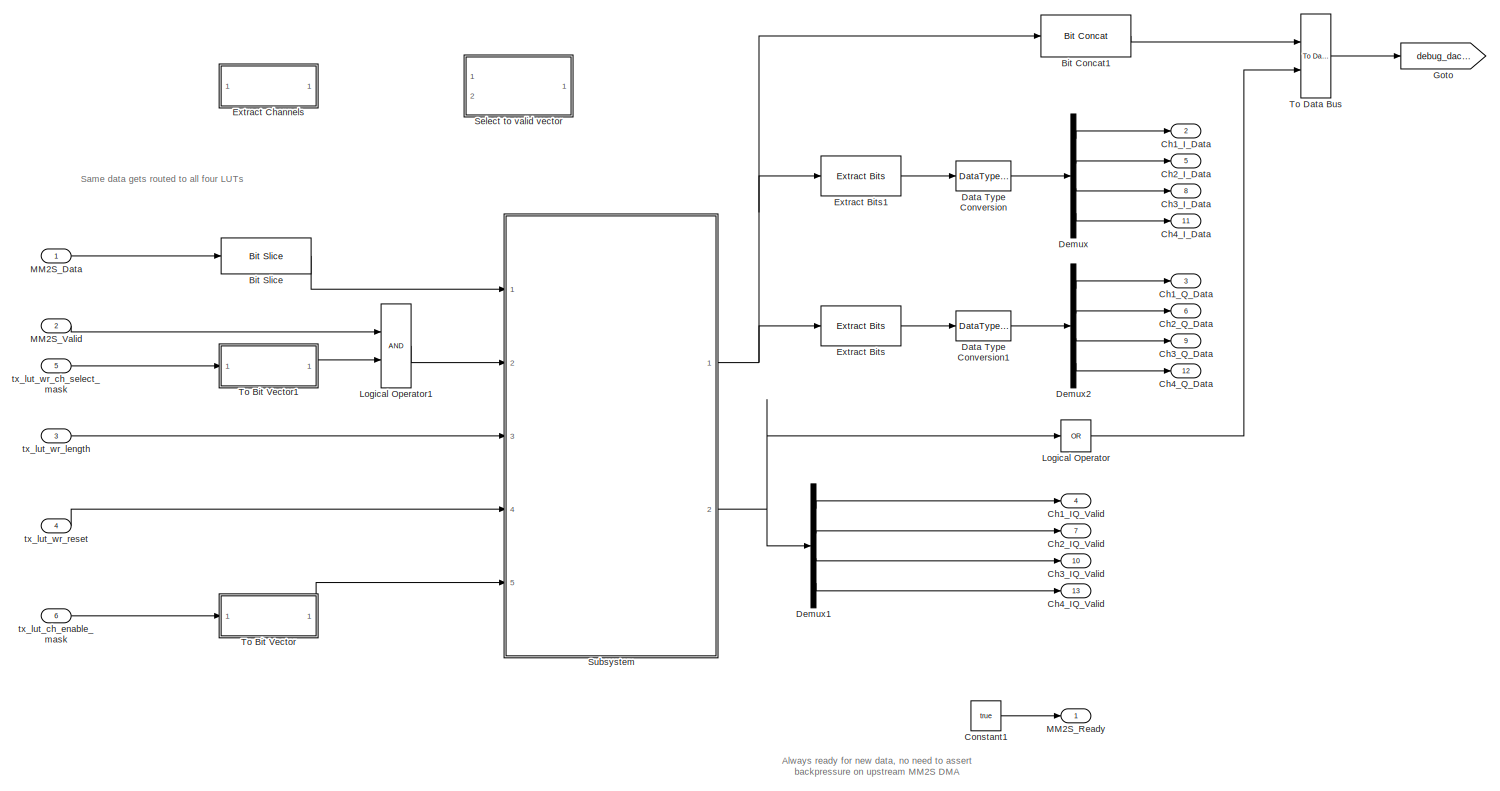
[diagram: TxLUT_RxCapture_DUT/Tx LUT - part 1/2, most of the canvas]
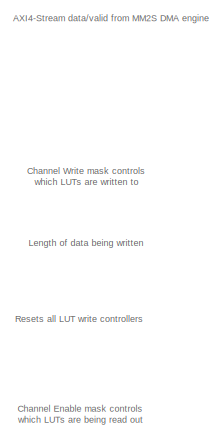
[diagram: TxLUT_RxCapture_DUT/Tx LUT - part 2/2, middle left region]
BLOCK [SubSystem] TxLUT_RxCapture_DUT/Tx LUT
  Ports = [6, 13]
  RequestExecContextInheritance = off
BLOCK [Reference] TxLUT_RxCapture_DUT/Tx LUT/Bit Concat1  REF=hdlsllib/Logic and Bit
Operations/Bit Concat
  Ports = [1, 1]
  SourceBlock = hdlsllib/Logic and Bit\nOperations/Bit Concat
  SourceProductBaseCode = SL
  SourceProductName = Simulink
  SourceType = Bit Concat
BLOCK [Reference] TxLUT_RxCapture_DUT/Tx LUT/Bit Slice  REF=hdlsllib/Logic and Bit
Operations/Bit Slice
  Ports = [1, 1]
  SourceBlock = hdlsllib/Logic and Bit\nOperations/Bit Slice
  SourceProductBaseCode = SL
  SourceProductName = Simulink
  SourceType = Bit Slice
BLOCK [Outport] TxLUT_RxCapture_DUT/Tx LUT/Ch1_IQ_Valid
  IconDisplay = Port number
  Port = 4
  VectorParamsAs1DForOutWhenUnconnected = off
BLOCK [Outport] TxLUT_RxCapture_DUT/Tx LUT/Ch1_I_Data
  IconDisplay = Port number
  Port = 2
  VectorParamsAs1DForOutWhenUnconnected = off
BLOCK [Outport] TxLUT_RxCapture_DUT/Tx LUT/Ch1_Q_Data
  IconDisplay = Port number
  Port = 3
  VectorParamsAs1DForOutWhenUnconnected = off
BLOCK [Outport] TxLUT_RxCapture_DUT/Tx LUT/Ch2_IQ_Valid
  IconDisplay = Port number
  Port = 7
  VectorParamsAs1DForOutWhenUnconnected = off
BLOCK [Outport] TxLUT_RxCapture_DUT/Tx LUT/Ch2_I_Data
  IconDisplay = Port number
  Port = 5
  VectorParamsAs1DForOutWhenUnconnected = off
BLOCK [Outport] TxLUT_RxCapture_DUT/Tx LUT/Ch2_Q_Data
  IconDisplay = Port number
  Port = 6
  VectorParamsAs1DForOutWhenUnconnected = off
BLOCK [Outport] TxLUT_RxCapture_DUT/Tx LUT/Ch3_IQ_Valid
  IconDisplay = Port number
  Port = 10
  VectorParamsAs1DForOutWhenUnconnected = off
BLOCK [Outport] TxLUT_RxCapture_DUT/Tx LUT/Ch3_I_Data
  IconDisplay = Port number
  Port = 8
  VectorParamsAs1DForOutWhenUnconnected = off
BLOCK [Outport] TxLUT_RxCapture_DUT/Tx LUT/Ch3_Q_Data
  IconDisplay = Port number
  Port = 9
  VectorParamsAs1DForOutWhenUnconnected = off
BLOCK [Outport] TxLUT_RxCapture_DUT/Tx LUT/Ch4_IQ_Valid
  IconDisplay = Port number
  Port = 13
  VectorParamsAs1DForOutWhenUnconnected = off
BLOCK [Outport] TxLUT_RxCapture_DUT/Tx LUT/Ch4_I_Data
  IconDisplay = Port number
  Port = 11
  VectorParamsAs1DForOutWhenUnconnected = off
BLOCK [Outport] TxLUT_RxCapture_DUT/Tx LUT/Ch4_Q_Data
  IconDisplay = Port number
  Port = 12
  VectorParamsAs1DForOutWhenUnconnected = off
BLOCK [Constant] TxLUT_RxCapture_DUT/Tx LUT/Constant1
  OutDataTypeStr = boolean
  SampleTime = -1
  Value = true
BLOCK [DataTypeConversion] TxLUT_RxCapture_DUT/Tx LUT/Data Type Conversion
  ConvertRealWorld = Stored Integer (SI)
  OutDataTypeStr = int16
  RndMeth = Floor
  SaturateOnIntegerOverflow = off
BLOCK [DataTypeConversion] TxLUT_RxCapture_DUT/Tx LUT/Data Type Conversion1
  ConvertRealWorld = Stored Integer (SI)
  OutDataTypeStr = int16
  RndMeth = Floor
  SaturateOnIntegerOverflow = off
BLOCK [Demux] TxLUT_RxCapture_DUT/Tx LUT/Demux
  DisplayOption = bar
  Outputs = NumChan
  Ports = [1, 4]
BLOCK [Demux] TxLUT_RxCapture_DUT/Tx LUT/Demux1
  DisplayOption = bar
  Outputs = NumChan
  Ports = [1, 4]
BLOCK [Demux] TxLUT_RxCapture_DUT/Tx LUT/Demux2
  DisplayOption = bar
  Outputs = NumChan
  Ports = [1, 4]
BLOCK [Reference] TxLUT_RxCapture_DUT/Tx LUT/Extract Bits  REF=simulink/Logic and Bit
Operations/Extract Bits
  Ports = [1, 1]
  SourceBlock = simulink/Logic and Bit\nOperations/Extract Bits
  SourceProductBaseCode = SL
  SourceProductName = Simulink
  SourceType = Extract Bits
BLOCK [Reference] TxLUT_RxCapture_DUT/Tx LUT/Extract Bits1  REF=simulink/Logic and Bit
Operations/Extract Bits
  Ports = [1, 1]
  SourceBlock = simulink/Logic and Bit\nOperations/Extract Bits
  SourceProductBaseCode = SL
  SourceProductName = Simulink
  SourceType = Extract Bits
BLOCK [SubSystem] TxLUT_RxCapture_DUT/Tx LUT/Extract Channels
  Commented = on
  Ports = [1, 1]
  RequestExecContextInheritance = off
BLOCK [Reference] TxLUT_RxCapture_DUT/Tx LUT/Extract Channels/Bit Slice  REF=hdlsllib/Logic and Bit
Operations/Bit Slice
  Ports = [1, 1]
  SourceBlock = hdlsllib/Logic and Bit\nOperations/Bit Slice
  SourceProductBaseCode = SL
  SourceProductName = Simulink
  SourceType = Bit Slice
BLOCK [Reference] TxLUT_RxCapture_DUT/Tx LUT/Extract Channels/Bit Slice1  REF=hdlsllib/Logic and Bit
Operations/Bit Slice
  Ports = [1, 1]
  SourceBlock = hdlsllib/Logic and Bit\nOperations/Bit Slice
  SourceProductBaseCode = SL
  SourceProductName = Simulink
  SourceType = Bit Slice
BLOCK [Reference] TxLUT_RxCapture_DUT/Tx LUT/Extract Channels/Bit Slice2  REF=hdlsllib/Logic and Bit
Operations/Bit Slice
  Ports = [1, 1]
  SourceBlock = hdlsllib/Logic and Bit\nOperations/Bit Slice
  SourceProductBaseCode = SL
  SourceProductName = Simulink
  SourceType = Bit Slice
BLOCK [Reference] TxLUT_RxCapture_DUT/Tx LUT/Extract Channels/Bit Slice3  REF=hdlsllib/Logic and Bit
Operations/Bit Slice
  Ports = [1, 1]
  SourceBlock = hdlsllib/Logic and Bit\nOperations/Bit Slice
  SourceProductBaseCode = SL
  SourceProductName = Simulink
  SourceType = Bit Slice
BLOCK [Inport] TxLUT_RxCapture_DUT/Tx LUT/Extract Channels/In1
  IconDisplay = Port number
BLOCK [Mux] TxLUT_RxCapture_DUT/Tx LUT/Extract Channels/Mux
  DisplayOption = bar
  Ports = [4, 1]
BLOCK [Outport] TxLUT_RxCapture_DUT/Tx LUT/Extract Channels/Out1
  IconDisplay = Port number
  VectorParamsAs1DForOutWhenUnconnected = off
BLOCK [Reshape] TxLUT_RxCapture_DUT/Tx LUT/Extract Channels/Reshape
  OutputDimensionality = Column vector (2-D)
  Ports = [1, 1]
BLOCK [Goto] TxLUT_RxCapture_DUT/Tx LUT/Goto
  GotoTag = debug_dac_data
  TagVisibility = global
BLOCK [Logic] TxLUT_RxCapture_DUT/Tx LUT/Logical Operator
  AllPortsSameDT = off
  IconShape = distinctive
  Inputs = 1
  Operator = OR
  OutDataTypeStr = boolean
  Ports = [1, 1]
BLOCK [Logic] TxLUT_RxCapture_DUT/Tx LUT/Logical Operator1
  AllPortsSameDT = off
  IconShape = distinctive
  OutDataTypeStr = boolean
  Ports = [2, 1]
BLOCK [Inport] TxLUT_RxCapture_DUT/Tx LUT/MM2S_Data
  IconDisplay = Port number
BLOCK [Outport] TxLUT_RxCapture_DUT/Tx LUT/MM2S_Ready
  IconDisplay = Port number
  VectorParamsAs1DForOutWhenUnconnected = off
BLOCK [Inport] TxLUT_RxCapture_DUT/Tx LUT/MM2S_Valid
  IconDisplay = Port number
  Port = 2
BLOCK [SubSystem] TxLUT_RxCapture_DUT/Tx LUT/Select to valid vector
  Commented = on
  Ports = [2, 1]
  RequestExecContextInheritance = off
BLOCK [Reference] TxLUT_RxCapture_DUT/Tx LUT/Select to valid vector/Compare To Constant  REF=simulink/Logic and Bit
Operations/Compare
To Constant
  Ports = [1, 1]
  SourceBlock = simulink/Logic and Bit\nOperations/Compare\nTo Constant
  SourceProductBaseCode = SL
  SourceProductName = Simulink
  SourceType = Compare To Constant
BLOCK [Reference] TxLUT_RxCapture_DUT/Tx LUT/Select to valid vector/Compare To Constant1  REF=simulink/Logic and Bit
Operations/Compare
To Constant
  Ports = [1, 1]
  SourceBlock = simulink/Logic and Bit\nOperations/Compare\nTo Constant
  SourceProductBaseCode = SL
  SourceProductName = Simulink
  SourceType = Compare To Constant
BLOCK [Reference] TxLUT_RxCapture_DUT/Tx LUT/Select to valid vector/Compare To Constant2  REF=simulink/Logic and Bit
Operations/Compare
To Constant
  Ports = [1, 1]
  SourceBlock = simulink/Logic and Bit\nOperations/Compare\nTo Constant
  SourceProductBaseCode = SL
  SourceProductName = Simulink
  SourceType = Compare To Constant
BLOCK [Reference] TxLUT_RxCapture_DUT/Tx LUT/Select to valid vector/Compare To Constant3  REF=simulink/Logic and Bit
Operations/Compare
To Constant
  Ports = [1, 1]
  SourceBlock = simulink/Logic and Bit\nOperations/Compare\nTo Constant
  SourceProductBaseCode = SL
  SourceProductName = Simulink
  SourceType = Compare To Constant
BLOCK [Logic] TxLUT_RxCapture_DUT/Tx LUT/Select to valid vector/Logical Operator
  AllPortsSameDT = off
  IconShape = distinctive
  OutDataTypeStr = boolean
  Ports = [2, 1]
BLOCK [Logic] TxLUT_RxCapture_DUT/Tx LUT/Select to valid vector/Logical Operator1
  AllPortsSameDT = off
  IconShape = distinctive
  OutDataTypeStr = boolean
  Ports = [2, 1]
BLOCK [Logic] TxLUT_RxCapture_DUT/Tx LUT/Select to valid vector/Logical Operator2
  AllPortsSameDT = off
  IconShape = distinctive
  OutDataTypeStr = boolean
  Ports = [2, 1]
BLOCK [Logic] TxLUT_RxCapture_DUT/Tx LUT/Select to valid vector/Logical Operator3
  AllPortsSameDT = off
  IconShape = distinctive
  OutDataTypeStr = boolean
  Ports = [2, 1]
BLOCK [Mux] TxLUT_RxCapture_DUT/Tx LUT/Select to valid vector/Mux
  DisplayOption = bar
  Ports = [4, 1]
BLOCK [Reshape] TxLUT_RxCapture_DUT/Tx LUT/Select to valid vector/Reshape1
  OutputDimensionality = Column vector (2-D)
  Ports = [1, 1]
BLOCK [Outport] TxLUT_RxCapture_DUT/Tx LUT/Select to valid vector/chan_valid
  IconDisplay = Port number
  VectorParamsAs1DForOutWhenUnconnected = off
BLOCK [Inport] TxLUT_RxCapture_DUT/Tx LUT/Select to valid vector/sel
  IconDisplay = Port number
BLOCK [Inport] TxLUT_RxCapture_DUT/Tx LUT/Select to valid vector/valid
  IconDisplay = Port number
  Port = 2
BLOCK [SubSystem] TxLUT_RxCapture_DUT/Tx LUT/Subsystem
  Ports = [5, 2]
  RequestExecContextInheritance = off
BLOCK [Outport] TxLUT_RxCapture_DUT/Tx LUT/Subsystem/AllDataOut
  ConcatenationDimension = 1
  IconDisplay = Port number
  VectorParamsAs1DForOutWhenUnconnected = off
BLOCK [Outport] TxLUT_RxCapture_DUT/Tx LUT/Subsystem/AllValidOut
  ConcatenationDimension = 1
  IconDisplay = Port number
  Port = 2
  VectorParamsAs1DForOutWhenUnconnected = off
BLOCK [Inport] TxLUT_RxCapture_DUT/Tx LUT/Subsystem/DataIn
  IconDisplay = Port number
BLOCK [ForEach] TxLUT_RxCapture_DUT/Tx LUT/Subsystem/For Each
  DisableCoverage = on
  Ports = []
BLOCK [SubSystem] TxLUT_RxCapture_DUT/Tx LUT/Subsystem/Tx LUT
  Ports = [5, 2]
  RequestExecContextInheritance = off
  TreatAsAtomicUnit = on
BLOCK [DataTypeConversion] TxLUT_RxCapture_DUT/Tx LUT/Subsystem/Tx LUT/Data Type Conversion
  OutDataTypeStr = fixdt(0,RAM_addr_width,0)
  RndMeth = Floor
  SaturateOnIntegerOverflow = off
BLOCK [Inport] TxLUT_RxCapture_DUT/Tx LUT/Subsystem/Tx LUT/DataIn
  IconDisplay = Port number
BLOCK [Outport] TxLUT_RxCapture_DUT/Tx LUT/Subsystem/Tx LUT/DataOut
  IconDisplay = Port number
  VectorParamsAs1DForOutWhenUnconnected = off
BLOCK [Reference] TxLUT_RxCapture_DUT/Tx LUT/Subsystem/Tx LUT/Decrement Stored Integer  REF=simulink/Additional Math
& Discrete/Additional Math:
Increment - Decrement/Decrement
Stored Integer
  Ports = [1, 1]
  SourceBlock = simulink/Additional Math\n& Discrete/Additional Math:\nIncrement - Decrement/Decrement\nStored Integer
  SourceProductBaseCode = SL
  SourceProductName = Simulink
  SourceType = Stored Integer Value Decrement
BLOCK [Reference] TxLUT_RxCapture_DUT/Tx LUT/Subsystem/Tx LUT/Detect Rise Positive  REF=simulink/Logic and Bit
Operations/Detect Rise
Positive
  Ports = [1, 1]
  SourceBlock = simulink/Logic and Bit\nOperations/Detect Rise\nPositive
  SourceProductBaseCode = SL
  SourceProductName = Simulink
  SourceType = Detect Rise Positive
BLOCK [Reference] TxLUT_RxCapture_DUT/Tx LUT/Subsystem/Tx LUT/Dual Port RAM  REF=hdlsllib/HDL RAMs/Dual Port RAM
  Ports = [4, 2]
  SourceBlock = hdlsllib/HDL RAMs/Dual Port RAM
  SourceProductBaseCode = HD
  SourceProductName = HDL Coder
  SourceType = Dual-port RAM
BLOCK [Delay] TxLUT_RxCapture_DUT/Tx LUT/Subsystem/Tx LUT/Pipeline Delay
  DelayLength = 1
  InitialCondition = 0
  InputPortMap = u0
  Ports = [1, 1]
BLOCK [Delay] TxLUT_RxCapture_DUT/Tx LUT/Subsystem/Tx LUT/Pipeline Delay1
  DelayLength = 1
  InitialCondition = 0
  InputPortMap = u0
  Ports = [1, 1]
BLOCK [SubSystem] TxLUT_RxCapture_DUT/Tx LUT/Subsystem/Tx LUT/Read Control
  ErrorFcn = Stateflow.Translate.translate
  PermitHierarchicalResolution = ExplicitOnly
  Ports = [3, 2]
  RequestExecContextInheritance = off
  SFBlockType = MATLAB Function
  TreatAsAtomicUnit = on
BLOCK [Demux] TxLUT_RxCapture_DUT/Tx LUT/Subsystem/Tx LUT/Read Control/ Demux 
  Outputs = 1
  Ports = [1, 1]
BLOCK [S-Function] TxLUT_RxCapture_DUT/Tx LUT/Subsystem/Tx LUT/Read Control/ SFunction 
  EnableBusSupport = on
  FunctionName = sf_sfun
  Parameters = addr_width
  PortCounts = [3 3]
  Ports = [3, 3]
  SFcnIsStateOwnerBlock = off
  SFunctionDeploymentMode = off
  Tag = Stateflow S-Function 4
BLOCK [Terminator] TxLUT_RxCapture_DUT/Tx LUT/Subsystem/Tx LUT/Read Control/ Terminator 
BLOCK [Inport] TxLUT_RxCapture_DUT/Tx LUT/Subsystem/Tx LUT/Read Control/addr_max
  IconDisplay = Port number
  Port = 2
BLOCK [Outport] TxLUT_RxCapture_DUT/Tx LUT/Subsystem/Tx LUT/Read Control/rd_addr
  IconDisplay = Port number
  VectorParamsAs1DForOutWhenUnconnected = off
BLOCK [Outport] TxLUT_RxCapture_DUT/Tx LUT/Subsystem/Tx LUT/Read Control/rd_en
  IconDisplay = Port number
  Port = 2
  VectorParamsAs1DForOutWhenUnconnected = off
BLOCK [Inport] TxLUT_RxCapture_DUT/Tx LUT/Subsystem/Tx LUT/Read Control/user_enable
  IconDisplay = Port number
  Port = 3
BLOCK [Inport] TxLUT_RxCapture_DUT/Tx LUT/Subsystem/Tx LUT/Read Control/wr_busy
  IconDisplay = Port number
BLOCK [Terminator] TxLUT_RxCapture_DUT/Tx LUT/Subsystem/Tx LUT/Terminator
BLOCK [UnitDelay] TxLUT_RxCapture_DUT/Tx LUT/Subsystem/Tx LUT/Unit Delay
  HasFrameUpgradeWarning = on
  SampleTime = -1
BLOCK [Inport] TxLUT_RxCapture_DUT/Tx LUT/Subsystem/Tx LUT/ValidIn
  IconDisplay = Port number
  OutDataTypeStr = boolean
  Port = 2
BLOCK [Outport] TxLUT_RxCapture_DUT/Tx LUT/Subsystem/Tx LUT/ValidOut
  IconDisplay = Port number
  Port = 2
  VectorParamsAs1DForOutWhenUnconnected = off
BLOCK [SubSystem] TxLUT_RxCapture_DUT/Tx LUT/Subsystem/Tx LUT/Write Control
  ErrorFcn = Stateflow.Translate.translate
  PermitHierarchicalResolution = ExplicitOnly
  Ports = [4, 5]
  RequestExecContextInheritance = off
  SFBlockType = MATLAB Function
  TreatAsAtomicUnit = on
BLOCK [Demux] TxLUT_RxCapture_DUT/Tx LUT/Subsystem/Tx LUT/Write Control/ Demux 
  Outputs = 1
  Ports = [1, 1]
BLOCK [S-Function] TxLUT_RxCapture_DUT/Tx LUT/Subsystem/Tx LUT/Write Control/ SFunction 
  EnableBusSupport = on
  FunctionName = sf_sfun
  Parameters = addr_width
  PortCounts = [4 6]
  Ports = [4, 6]
  SFcnIsStateOwnerBlock = off
  SFunctionDeploymentMode = off
  Tag = Stateflow S-Function 5
BLOCK [Terminator] TxLUT_RxCapture_DUT/Tx LUT/Subsystem/Tx LUT/Write Control/ Terminator 
BLOCK [Outport] TxLUT_RxCapture_DUT/Tx LUT/Subsystem/Tx LUT/Write Control/addr_max
  IconDisplay = Port number
  Port = 5
  VectorParamsAs1DForOutWhenUnconnected = off
BLOCK [Inport] TxLUT_RxCapture_DUT/Tx LUT/Subsystem/Tx LUT/Write Control/addr_max_in
  IconDisplay = Port number
  Port = 3
BLOCK [Inport] TxLUT_RxCapture_DUT/Tx LUT/Subsystem/Tx LUT/Write Control/data_in
  IconDisplay = Port number
BLOCK [Inport] TxLUT_RxCapture_DUT/Tx LUT/Subsystem/Tx LUT/Write Control/reset
  IconDisplay = Port number
  Port = 4
BLOCK [Inport] TxLUT_RxCapture_DUT/Tx LUT/Subsystem/Tx LUT/Write Control/valid_in
  IconDisplay = Port number
  Port = 2
BLOCK [Outport] TxLUT_RxCapture_DUT/Tx LUT/Subsystem/Tx LUT/Write Control/wr_addr
  IconDisplay = Port number
  Port = 2
  VectorParamsAs1DForOutWhenUnconnected = off
BLOCK [Outport] TxLUT_RxCapture_DUT/Tx LUT/Subsystem/Tx LUT/Write Control/wr_busy
  IconDisplay = Port number
  Port = 4
  VectorParamsAs1DForOutWhenUnconnected = off
BLOCK [Outport] TxLUT_RxCapture_DUT/Tx LUT/Subsystem/Tx LUT/Write Control/wr_din
  IconDisplay = Port number
  VectorParamsAs1DForOutWhenUnconnected = off
BLOCK [Outport] TxLUT_RxCapture_DUT/Tx LUT/Subsystem/Tx LUT/Write Control/wr_en
  IconDisplay = Port number
  Port = 3
  VectorParamsAs1DForOutWhenUnconnected = off
BLOCK [SubSystem] TxLUT_RxCapture_DUT/Tx LUT/Subsystem/Tx LUT/ZeroOnInvalid
  Ports = [2, 1]
  RequestExecContextInheritance = off
BLOCK [Constant] TxLUT_RxCapture_DUT/Tx LUT/Subsystem/Tx LUT/ZeroOnInvalid/Constant
  OutDataTypeStr = Inherit: Inherit via back propagation
  SampleTime = -1
  Value = 0
BLOCK [DataTypeDuplicate] TxLUT_RxCapture_DUT/Tx LUT/Subsystem/Tx LUT/ZeroOnInvalid/Data Type Duplicate
  Ports = [2]
BLOCK [Inport] TxLUT_RxCapture_DUT/Tx LUT/Subsystem/Tx LUT/ZeroOnInvalid/DataIn
  IconDisplay = Port number
BLOCK [Outport] TxLUT_RxCapture_DUT/Tx LUT/Subsystem/Tx LUT/ZeroOnInvalid/DataOut
  IconDisplay = Port number
  VectorParamsAs1DForOutWhenUnconnected = off
BLOCK [MultiPortSwitch] TxLUT_RxCapture_DUT/Tx LUT/Subsystem/Tx LUT/ZeroOnInvalid/Multiport Switch
  DataPortOrder = Zero-based contiguous
  InputSameDT = off
  Inputs = 2
  Ports = [3, 1]
  SaturateOnIntegerOverflow = off
  zeroidx = on
BLOCK [Inport] TxLUT_RxCapture_DUT/Tx LUT/Subsystem/Tx LUT/ZeroOnInvalid/Valid
  IconDisplay = Port number
  Port = 2
BLOCK [Inport] TxLUT_RxCapture_DUT/Tx LUT/Subsystem/Tx LUT/output_enable
  IconDisplay = Port number
  OutDataTypeStr = boolean
  Port = 5
BLOCK [Inport] TxLUT_RxCapture_DUT/Tx LUT/Subsystem/Tx LUT/reset
  IconDisplay = Port number
  OutDataTypeStr = boolean
  Port = 4
BLOCK [Inport] TxLUT_RxCapture_DUT/Tx LUT/Subsystem/Tx LUT/signal_length
  IconDisplay = Port number
  OutDataTypeStr = uint32
  Port = 3
BLOCK [Inport] TxLUT_RxCapture_DUT/Tx LUT/Subsystem/ValidIn
  IconDisplay = Port number
  Partition = on
  PartitionDimension = 1
  PartitionOffset = 0
  PartitionWidth = 1
  Port = 2
BLOCK [Inport] TxLUT_RxCapture_DUT/Tx LUT/Subsystem/output_enable
  IconDisplay = Port number
  Partition = on
  PartitionDimension = 1
  PartitionOffset = 0
  PartitionWidth = 1
  Port = 5
BLOCK [Inport] TxLUT_RxCapture_DUT/Tx LUT/Subsystem/reset
  IconDisplay = Port number
  Port = 4
BLOCK [Inport] TxLUT_RxCapture_DUT/Tx LUT/Subsystem/signal_length
  IconDisplay = Port number
  Port = 3
BLOCK [SubSystem] TxLUT_RxCapture_DUT/Tx LUT/To Bit Vector
  Ports = [1, 1]
  RequestExecContextInheritance = off
BLOCK [Reference] TxLUT_RxCapture_DUT/Tx LUT/To Bit Vector/Bit Slice  REF=hdlsllib/Logic and Bit
Operations/Bit Slice
  Ports = [1, 1]
  SourceBlock = hdlsllib/Logic and Bit\nOperations/Bit Slice
  SourceProductBaseCode = SL
  SourceProductName = Simulink
  SourceType = Bit Slice
BLOCK [Reference] TxLUT_RxCapture_DUT/Tx LUT/To Bit Vector/Bit Slice1  REF=hdlsllib/Logic and Bit
Operations/Bit Slice
  Ports = [1, 1]
  SourceBlock = hdlsllib/Logic and Bit\nOperations/Bit Slice
  SourceProductBaseCode = SL
  SourceProductName = Simulink
  SourceType = Bit Slice
BLOCK [Reference] TxLUT_RxCapture_DUT/Tx LUT/To Bit Vector/Bit Slice2  REF=hdlsllib/Logic and Bit
Operations/Bit Slice
  Ports = [1, 1]
  SourceBlock = hdlsllib/Logic and Bit\nOperations/Bit Slice
  SourceProductBaseCode = SL
  SourceProductName = Simulink
  SourceType = Bit Slice
BLOCK [Reference] TxLUT_RxCapture_DUT/Tx LUT/To Bit Vector/Bit Slice3  REF=hdlsllib/Logic and Bit
Operations/Bit Slice
  Ports = [1, 1]
  SourceBlock = hdlsllib/Logic and Bit\nOperations/Bit Slice
  SourceProductBaseCode = SL
  SourceProductName = Simulink
  SourceType = Bit Slice
BLOCK [DataTypeConversion] TxLUT_RxCapture_DUT/Tx LUT/To Bit Vector/Data Type Conversion
  OutDataTypeStr = boolean
  RndMeth = Floor
  SaturateOnIntegerOverflow = off
BLOCK [Inport] TxLUT_RxCapture_DUT/Tx LUT/To Bit Vector/In1
  IconDisplay = Port number
BLOCK [Mux] TxLUT_RxCapture_DUT/Tx LUT/To Bit Vector/Mux
  DisplayOption = bar
  Ports = [4, 1]
BLOCK [Outport] TxLUT_RxCapture_DUT/Tx LUT/To Bit Vector/Out1
  IconDisplay = Port number
  VectorParamsAs1DForOutWhenUnconnected = off
BLOCK [Reshape] TxLUT_RxCapture_DUT/Tx LUT/To Bit Vector/Reshape
  OutputDimensionality = Column vector (2-D)
  Ports = [1, 1]
BLOCK [SubSystem] TxLUT_RxCapture_DUT/Tx LUT/To Bit Vector1
  Ports = [1, 1]
  RequestExecContextInheritance = off
BLOCK [Reference] TxLUT_RxCapture_DUT/Tx LUT/To Bit Vector1/Bit Slice  REF=hdlsllib/Logic and Bit
Operations/Bit Slice
  Ports = [1, 1]
  SourceBlock = hdlsllib/Logic and Bit\nOperations/Bit Slice
  SourceProductBaseCode = SL
  SourceProductName = Simulink
  SourceType = Bit Slice
BLOCK [Reference] TxLUT_RxCapture_DUT/Tx LUT/To Bit Vector1/Bit Slice1  REF=hdlsllib/Logic and Bit
Operations/Bit Slice
  Ports = [1, 1]
  SourceBlock = hdlsllib/Logic and Bit\nOperations/Bit Slice
  SourceProductBaseCode = SL
  SourceProductName = Simulink
  SourceType = Bit Slice
BLOCK [Reference] TxLUT_RxCapture_DUT/Tx LUT/To Bit Vector1/Bit Slice2  REF=hdlsllib/Logic and Bit
Operations/Bit Slice
  Ports = [1, 1]
  SourceBlock = hdlsllib/Logic and Bit\nOperations/Bit Slice
  SourceProductBaseCode = SL
  SourceProductName = Simulink
  SourceType = Bit Slice
BLOCK [Reference] TxLUT_RxCapture_DUT/Tx LUT/To Bit Vector1/Bit Slice3  REF=hdlsllib/Logic and Bit
Operations/Bit Slice
  Ports = [1, 1]
  SourceBlock = hdlsllib/Logic and Bit\nOperations/Bit Slice
  SourceProductBaseCode = SL
  SourceProductName = Simulink
  SourceType = Bit Slice
BLOCK [DataTypeConversion] TxLUT_RxCapture_DUT/Tx LUT/To Bit Vector1/Data Type Conversion
  OutDataTypeStr = boolean
  RndMeth = Floor
  SaturateOnIntegerOverflow = off
BLOCK [Inport] TxLUT_RxCapture_DUT/Tx LUT/To Bit Vector1/In1
  IconDisplay = Port number
BLOCK [Mux] TxLUT_RxCapture_DUT/Tx LUT/To Bit Vector1/Mux
  DisplayOption = bar
  Ports = [4, 1]
BLOCK [Outport] TxLUT_RxCapture_DUT/Tx LUT/To Bit Vector1/Out1
  IconDisplay = Port number
  VectorParamsAs1DForOutWhenUnconnected = off
BLOCK [Reshape] TxLUT_RxCapture_DUT/Tx LUT/To Bit Vector1/Reshape
  OutputDimensionality = Column vector (2-D)
  Ports = [1, 1]
BLOCK [Reference] TxLUT_RxCapture_DUT/Tx LUT/To Data Bus  REF=rfsoc_hdl_utils/To Data Bus  (lib defined in slx_fcaf48ee95ec)
  Ports = [2, 1]
  SourceBlock = rfsoc_hdl_utils/To Data Bus
  SourceType = To Data Bus
BLOCK [Inport] TxLUT_RxCapture_DUT/Tx LUT/tx_lut_ch_enable_mask
  IconDisplay = Port number
  Port = 6
BLOCK [Inport] TxLUT_RxCapture_DUT/Tx LUT/tx_lut_wr_ch_select_mask
  IconDisplay = Port number
  Port = 5
BLOCK [Inport] TxLUT_RxCapture_DUT/Tx LUT/tx_lut_wr_length
  IconDisplay = Port number
  Port = 3
BLOCK [Inport] TxLUT_RxCapture_DUT/Tx LUT/tx_lut_wr_reset
  IconDisplay = Port number
  Port = 4
BLOCK [Inport] TxLUT_RxCapture_DUT/rx_auto_trig_en
  IconDisplay = Port number
  Port = 20
BLOCK [Inport] TxLUT_RxCapture_DUT/rx_auto_trig_freq
  IconDisplay = Port number
  Port = 19
BLOCK [Inport] TxLUT_RxCapture_DUT/rx_capture_trig
  IconDisplay = Port number
  Port = 16
BLOCK [Inport] TxLUT_RxCapture_DUT/rx_frame_size
  IconDisplay = Port number
  Port = 17
BLOCK [Inport] TxLUT_RxCapture_DUT/rx_src_select
  IconDisplay = Port number
  OutDataTypeStr = fixdt(0,1,0)
  Port = 21
BLOCK [Inport] TxLUT_RxCapture_DUT/rx_stream_en
  IconDisplay = Port number
  Port = 18
BLOCK [Inport] TxLUT_RxCapture_DUT/tx_lut_ch_enable_mask
  IconDisplay = Port number
  Port = 25
BLOCK [Inport] TxLUT_RxCapture_DUT/tx_lut_wr_ch_select_mask
  IconDisplay = Port number
  Port = 24
BLOCK [Inport] TxLUT_RxCapture_DUT/tx_lut_wr_length
  IconDisplay = Port number
  Port = 22
BLOCK [Inport] TxLUT_RxCapture_DUT/tx_lut_wr_reset
  IconDisplay = Port number
  Port = 23
ANNOTATION (root): trigger a capture after LUT has been programmed
ANNOTATION AXI4Stream_DMA_MM2S: Simple behavioral model for MM2S DMA
ANNOTATION TxLUT_RxCapture_DUT: Capture DAC LUT data for debug, Source Goto block in Tx LUT
ANNOTATION TxLUT_RxCapture_DUT/Rx Capture/Capture Control: Count to N samples specified by AXI-lite frame size input
ANNOTATION TxLUT_RxCapture_DUT/Rx Capture/Capture Control: Handle edge-case if we're at the max counter value and we have back-pressure, do not reset just yet. Wait for back pressure to clear then a reset can be applied
ANNOTATION TxLUT_RxCapture_DUT/Rx Capture/Capture Control: Pause counter when experiencing backpressure
ANNOTATION TxLUT_RxCapture_DUT/Tx LUT: Channel Write mask controls which LUTs are written to
ANNOTATION TxLUT_RxCapture_DUT/Tx LUT: AXI4-Stream data/valid from MM2S DMA engine
ANNOTATION TxLUT_RxCapture_DUT/Tx LUT: Always ready for new data, no need to assert backpressure on upstream MM2S DMA
ANNOTATION TxLUT_RxCapture_DUT/Tx LUT: Channel Enable mask controls which LUTs are being read out
ANNOTATION TxLUT_RxCapture_DUT/Tx LUT: Length of data being written
ANNOTATION TxLUT_RxCapture_DUT/Tx LUT: Resets all LUT write controllers
ANNOTATION TxLUT_RxCapture_DUT/Tx LUT: Same data gets routed to all four LUTs
ANNOTATION TxLUT_RxCapture_DUT/Tx LUT/Subsystem/Tx LUT: Match RAM read delay
ANNOTATION TxLUT_RxCapture_DUT/Tx LUT/Subsystem/Tx LUT: Programming sequence: 1. Reg write reset_wr = 1 2. Reg write reset_wr = 0 3. Reg write signal_length = length(x) 4. MM2S DMA write x Start Tx: 5. Reg write tx_enable = 1 Program new signal: 6. Reg write tx_enable = 0 7. Go to (1)
NET ADC_Valid:1 -> TxLUT_RxCapture_DUT:12, TxLUT_RxCapture_DUT:15, TxLUT_RxCapture_DUT:6, TxLUT_RxCapture_DUT:9
LINE AXI4Stream_DMA_MM2S/Data Type Conversion:1 -> AXI4Stream_DMA_MM2S/Data:1
LINE AXI4Stream_DMA_MM2S/Pack Complex:1 -> AXI4Stream_DMA_MM2S/Data Type Conversion:1
LINE AXI4Stream_DMA_MM2S/Signal From Workspace1:1 -> AXI4Stream_DMA_MM2S/Valid:1
LINE AXI4Stream_DMA_MM2S/Signal From Workspace:1 -> AXI4Stream_DMA_MM2S/Pack Complex:1
LINE AXI4Stream_DMA_MM2S:1 -> TxLUT_RxCapture_DUT:1
LINE AXI4Stream_DMA_MM2S:2 -> TxLUT_RxCapture_DUT:2
LINE AXI4Stream_DMA_S2MM/Data:1 -> AXI4Stream_DMA_S2MM/PlotData:1
LINE AXI4Stream_DMA_S2MM/PlotData/Channel Unpack:1 -> AXI4Stream_DMA_S2MM/PlotData/Demux:1
NET AXI4Stream_DMA_S2MM/PlotData/Demux:1 -> AXI4Stream_DMA_S2MM/PlotData/Spectrum Analyzer:1, AXI4Stream_DMA_S2MM/PlotData/Time Scope:1
LINE AXI4Stream_DMA_S2MM/PlotData/Demux:2 -> AXI4Stream_DMA_S2MM/PlotData/Time Scope:2
LINE AXI4Stream_DMA_S2MM/PlotData/Demux:3 -> AXI4Stream_DMA_S2MM/PlotData/Time Scope:3
LINE AXI4Stream_DMA_S2MM/PlotData/Demux:4 -> AXI4Stream_DMA_S2MM/PlotData/Time Scope:4
LINE AXI4Stream_DMA_S2MM/PlotData/In1:1 -> AXI4Stream_DMA_S2MM/PlotData/Channel Unpack:1
LINE AXI4Stream_DMA_S2MM/Valid:1 -> AXI4Stream_DMA_S2MM/PlotData:enable
LINE Complex to Real-Imag1:1 -> TxLUT_RxCapture_DUT:7
LINE Complex to Real-Imag1:2 -> TxLUT_RxCapture_DUT:8
LINE Complex to Real-Imag2:1 -> TxLUT_RxCapture_DUT:10
LINE Complex to Real-Imag2:2 -> TxLUT_RxCapture_DUT:11
LINE Complex to Real-Imag3:1 -> TxLUT_RxCapture_DUT:13
LINE Complex to Real-Imag3:2 -> TxLUT_RxCapture_DUT:14
LINE Complex to Real-Imag:1 -> TxLUT_RxCapture_DUT:4
LINE Complex to Real-Imag:2 -> TxLUT_RxCapture_DUT:5
LINE Constant10:1 -> TxLUT_RxCapture_DUT:3
LINE Constant1:1 -> TxLUT_RxCapture_DUT:22
LINE Constant2:1 -> TxLUT_RxCapture_DUT:23
LINE Constant3:1 -> TxLUT_RxCapture_DUT:19
LINE Constant4:1 -> TxLUT_RxCapture_DUT:17
LINE Constant5:1 -> Delay1:1
LINE Constant6:1 -> TxLUT_RxCapture_DUT:24
LINE Constant7:1 -> TxLUT_RxCapture_DUT:21
LINE Constant8:1 -> TxLUT_RxCapture_DUT:20
LINE Constant9:1 -> Delay5:1
LINE Delay1:1 -> TxLUT_RxCapture_DUT:25
LINE Delay2:1 -> Complex to Real-Imag1:1
LINE Delay3:1 -> Complex to Real-Imag2:1
LINE Delay4:1 -> Complex to Real-Imag3:1
LINE Delay5:1 -> TxLUT_RxCapture_DUT:16
LINE Delay:1 -> Complex to Real-Imag:1
LINE From1:1 -> Delay2:1
LINE From2:1 -> Delay3:1
LINE From3:1 -> Delay4:1
LINE From:1 -> Delay:1
LINE Real-Imag to Complex1:1 -> Goto4:1
LINE Real-Imag to Complex2:1 -> Goto5:1
LINE Real-Imag to Complex3:1 -> Goto6:1
LINE Real-Imag to Complex:1 -> Goto:1
LINE StreamEn/Data Type Conversion1:1 -> StreamEn/Out1:1
LINE StreamEn/Manual Switch1:1 -> StreamEn/Data Type Conversion1:1
LINE StreamEn/OFF:1 -> StreamEn/Manual Switch1:2
LINE StreamEn/ON:1 -> StreamEn/Manual Switch1:1
LINE StreamEn:1 -> TxLUT_RxCapture_DUT:18
LINE TxLUT_RxCapture_DUT/ConcatADCChannels/Bit Concat1:1 -> TxLUT_RxCapture_DUT/ConcatADCChannels/To Data Bus:1
LINE TxLUT_RxCapture_DUT/ConcatADCChannels/Bit Concat2:1 -> TxLUT_RxCapture_DUT/ConcatADCChannels/Bit Concat1:3
LINE TxLUT_RxCapture_DUT/ConcatADCChannels/Bit Concat3:1 -> TxLUT_RxCapture_DUT/ConcatADCChannels/Bit Concat1:2
LINE TxLUT_RxCapture_DUT/ConcatADCChannels/Bit Concat4:1 -> TxLUT_RxCapture_DUT/ConcatADCChannels/Bit Concat1:1
LINE TxLUT_RxCapture_DUT/ConcatADCChannels/Bit Concat:1 -> TxLUT_RxCapture_DUT/ConcatADCChannels/Bit Concat1:4
LINE TxLUT_RxCapture_DUT/ConcatADCChannels/Tile1_Ch1_I_Data :1 -> TxLUT_RxCapture_DUT/ConcatADCChannels/Bit Concat:2
LINE TxLUT_RxCapture_DUT/ConcatADCChannels/Tile1_Ch1_Q_Data:1 -> TxLUT_RxCapture_DUT/ConcatADCChannels/Bit Concat:1
LINE TxLUT_RxCapture_DUT/ConcatADCChannels/Tile1_Ch1_Q_Valid:1 -> TxLUT_RxCapture_DUT/ConcatADCChannels/To Data Bus:2
LINE TxLUT_RxCapture_DUT/ConcatADCChannels/Tile1_Ch2_I_Data:1 -> TxLUT_RxCapture_DUT/ConcatADCChannels/Bit Concat2:2
LINE TxLUT_RxCapture_DUT/ConcatADCChannels/Tile1_Ch2_Q_Data:1 -> TxLUT_RxCapture_DUT/ConcatADCChannels/Bit Concat2:1
LINE TxLUT_RxCapture_DUT/ConcatADCChannels/Tile1_Ch2_Q_Valid:1 -> TxLUT_RxCapture_DUT/ConcatADCChannels/Terminator2:1
LINE TxLUT_RxCapture_DUT/ConcatADCChannels/Tile2_Ch1_I_Data:1 -> TxLUT_RxCapture_DUT/ConcatADCChannels/Bit Concat3:2
LINE TxLUT_RxCapture_DUT/ConcatADCChannels/Tile2_Ch1_Q_Data:1 -> TxLUT_RxCapture_DUT/ConcatADCChannels/Bit Concat3:1
LINE TxLUT_RxCapture_DUT/ConcatADCChannels/Tile2_Ch1_Q_Valid:1 -> TxLUT_RxCapture_DUT/ConcatADCChannels/Terminator4:1
LINE TxLUT_RxCapture_DUT/ConcatADCChannels/Tile2_Ch2_I_Data:1 -> TxLUT_RxCapture_DUT/ConcatADCChannels/Bit Concat4:2
LINE TxLUT_RxCapture_DUT/ConcatADCChannels/Tile2_Ch2_Q_Data:1 -> TxLUT_RxCapture_DUT/ConcatADCChannels/Bit Concat4:1
LINE TxLUT_RxCapture_DUT/ConcatADCChannels/Tile2_Ch2_Q_Valid:1 -> TxLUT_RxCapture_DUT/ConcatADCChannels/Terminator6:1
LINE TxLUT_RxCapture_DUT/ConcatADCChannels/To Data Bus:1 -> TxLUT_RxCapture_DUT/ConcatADCChannels/DataBus:1
LINE TxLUT_RxCapture_DUT/ConcatADCChannels:1 -> TxLUT_RxCapture_DUT/Multiport Switch:2
LINE TxLUT_RxCapture_DUT/From:1 -> TxLUT_RxCapture_DUT/Multiport Switch:3
LINE TxLUT_RxCapture_DUT/MM2S_Data:1 -> TxLUT_RxCapture_DUT/Tx LUT:1
LINE TxLUT_RxCapture_DUT/MM2S_Valid:1 -> TxLUT_RxCapture_DUT/Tx LUT:2
LINE TxLUT_RxCapture_DUT/Multiport Switch:1 -> TxLUT_RxCapture_DUT/Rx Capture:1
LINE TxLUT_RxCapture_DUT/Rx Capture/ AXIS_FIFO/CaptureEn:1 -> TxLUT_RxCapture_DUT/Rx Capture/ AXIS_FIFO/Logical Operator:2
LINE TxLUT_RxCapture_DUT/Rx Capture/ AXIS_FIFO/FWFT FIFO/Compare To Constant:1 -> TxLUT_RxCapture_DUT/Rx Capture/ AXIS_FIFO/FWFT FIFO/afull:1
LINE TxLUT_RxCapture_DUT/Rx Capture/ AXIS_FIFO/FWFT FIFO/HDL FIFO:1 -> TxLUT_RxCapture_DUT/Rx Capture/ AXIS_FIFO/FWFT FIFO/data_o:1
LINE TxLUT_RxCapture_DUT/Rx Capture/ AXIS_FIFO/FWFT FIFO/HDL FIFO:2 -> TxLUT_RxCapture_DUT/Rx Capture/ AXIS_FIFO/FWFT FIFO/empty:1
NET TxLUT_RxCapture_DUT/Rx Capture/ AXIS_FIFO/FWFT FIFO/HDL FIFO:3 -> TxLUT_RxCapture_DUT/Rx Capture/ AXIS_FIFO/FWFT FIFO/Logical Operator1:1, TxLUT_RxCapture_DUT/Rx Capture/ AXIS_FIFO/FWFT FIFO/full:1
NET TxLUT_RxCapture_DUT/Rx Capture/ AXIS_FIFO/FWFT FIFO/HDL FIFO:4 -> TxLUT_RxCapture_DUT/Rx Capture/ AXIS_FIFO/FWFT FIFO/Compare To Constant:1, TxLUT_RxCapture_DUT/Rx Capture/ AXIS_FIFO/FWFT FIFO/num:1
LINE TxLUT_RxCapture_DUT/Rx Capture/ AXIS_FIFO/FWFT FIFO/Logical Operator1:1 -> TxLUT_RxCapture_DUT/Rx Capture/ AXIS_FIFO/FWFT FIFO/Logical Operator2:2
LINE TxLUT_RxCapture_DUT/Rx Capture/ AXIS_FIFO/FWFT FIFO/Logical Operator2:1 -> TxLUT_RxCapture_DUT/Rx Capture/ AXIS_FIFO/FWFT FIFO/HDL FIFO:2
LINE TxLUT_RxCapture_DUT/Rx Capture/ AXIS_FIFO/FWFT FIFO/data_i:1 -> TxLUT_RxCapture_DUT/Rx Capture/ AXIS_FIFO/FWFT FIFO/HDL FIFO:1
LINE TxLUT_RxCapture_DUT/Rx Capture/ AXIS_FIFO/FWFT FIFO/push:1 -> TxLUT_RxCapture_DUT/Rx Capture/ AXIS_FIFO/FWFT FIFO/Logical Operator2:1
LINE TxLUT_RxCapture_DUT/Rx Capture/ AXIS_FIFO/FWFT FIFO/rd_ack:1 -> TxLUT_RxCapture_DUT/Rx Capture/ AXIS_FIFO/FWFT FIFO/HDL FIFO:3
LINE TxLUT_RxCapture_DUT/Rx Capture/ AXIS_FIFO/FWFT FIFO:1 -> TxLUT_RxCapture_DUT/Rx Capture/ AXIS_FIFO/TDataOut:1
LINE TxLUT_RxCapture_DUT/Rx Capture/ AXIS_FIFO/FWFT FIFO:2 -> TxLUT_RxCapture_DUT/Rx Capture/ AXIS_FIFO/Logical Operator4:1
LINE TxLUT_RxCapture_DUT/Rx Capture/ AXIS_FIFO/FWFT FIFO:3 -> TxLUT_RxCapture_DUT/Rx Capture/ AXIS_FIFO/Terminator:1
LINE TxLUT_RxCapture_DUT/Rx Capture/ AXIS_FIFO/FWFT FIFO:4 -> TxLUT_RxCapture_DUT/Rx Capture/ AXIS_FIFO/Terminator1:1
NET TxLUT_RxCapture_DUT/Rx Capture/ AXIS_FIFO/FWFT FIFO:5 -> TxLUT_RxCapture_DUT/Rx Capture/ AXIS_FIFO/AFull:1, TxLUT_RxCapture_DUT/Rx Capture/ AXIS_FIFO/Logical Operator6:1
LINE TxLUT_RxCapture_DUT/Rx Capture/ AXIS_FIFO/Logical Operator1:1 -> TxLUT_RxCapture_DUT/Rx Capture/ AXIS_FIFO/ValidOut:1
LINE TxLUT_RxCapture_DUT/Rx Capture/ AXIS_FIFO/Logical Operator4:1 -> TxLUT_RxCapture_DUT/Rx Capture/ AXIS_FIFO/Logical Operator5:2
NET TxLUT_RxCapture_DUT/Rx Capture/ AXIS_FIFO/Logical Operator5:1 -> TxLUT_RxCapture_DUT/Rx Capture/ AXIS_FIFO/FWFT FIFO:3, TxLUT_RxCapture_DUT/Rx Capture/ AXIS_FIFO/Logical Operator1:1
LINE TxLUT_RxCapture_DUT/Rx Capture/ AXIS_FIFO/Logical Operator6:1 -> TxLUT_RxCapture_DUT/Rx Capture/ AXIS_FIFO/Logical Operator7:1
LINE TxLUT_RxCapture_DUT/Rx Capture/ AXIS_FIFO/Logical Operator7:1 -> TxLUT_RxCapture_DUT/Rx Capture/ AXIS_FIFO/FWFT FIFO:2
LINE TxLUT_RxCapture_DUT/Rx Capture/ AXIS_FIFO/Logical Operator:1 -> TxLUT_RxCapture_DUT/Rx Capture/ AXIS_FIFO/Logical Operator7:2
LINE TxLUT_RxCapture_DUT/Rx Capture/ AXIS_FIFO/StreamEn:1 -> TxLUT_RxCapture_DUT/Rx Capture/ AXIS_FIFO/Logical Operator1:2
LINE TxLUT_RxCapture_DUT/Rx Capture/ AXIS_FIFO/TData:1 -> TxLUT_RxCapture_DUT/Rx Capture/ AXIS_FIFO/FWFT FIFO:1
LINE TxLUT_RxCapture_DUT/Rx Capture/ AXIS_FIFO/TReady:1 -> TxLUT_RxCapture_DUT/Rx Capture/ AXIS_FIFO/Logical Operator5:1
LINE TxLUT_RxCapture_DUT/Rx Capture/ AXIS_FIFO/TValid:1 -> TxLUT_RxCapture_DUT/Rx Capture/ AXIS_FIFO/Logical Operator:1
LINE TxLUT_RxCapture_DUT/Rx Capture/ AXIS_FIFO:1 -> TxLUT_RxCapture_DUT/Rx Capture/S2MM_Data:1
LINE TxLUT_RxCapture_DUT/Rx Capture/ AXIS_FIFO:2 -> TxLUT_RxCapture_DUT/Rx Capture/S2MM_Valid:1
NET TxLUT_RxCapture_DUT/Rx Capture/ AXIS_FIFO:3 -> TxLUT_RxCapture_DUT/Rx Capture/Capture Control:4, TxLUT_RxCapture_DUT/Rx Capture/HDL Counter:1
NET TxLUT_RxCapture_DUT/Rx Capture/AXI4-Lite Initial Value/Compare To Zero:1 -> TxLUT_RxCapture_DUT/Rx Capture/AXI4-Lite Initial Value/Logical Operator:1, TxLUT_RxCapture_DUT/Rx Capture/AXI4-Lite Initial Value/Set_Latch:1
NET TxLUT_RxCapture_DUT/Rx Capture/AXI4-Lite Initial Value/In1:1 -> TxLUT_RxCapture_DUT/Rx Capture/AXI4-Lite Initial Value/Compare To Zero:1, TxLUT_RxCapture_DUT/Rx Capture/AXI4-Lite Initial Value/Unit Delay Enabled Synchronous:1
LINE TxLUT_RxCapture_DUT/Rx Capture/AXI4-Lite Initial Value/Logical Operator:1 -> TxLUT_RxCapture_DUT/Rx Capture/AXI4-Lite Initial Value/Unit Delay Enabled Synchronous:2
LINE TxLUT_RxCapture_DUT/Rx Capture/AXI4-Lite Initial Value/Set_Latch/Logical Operator5:1 -> TxLUT_RxCapture_DUT/Rx Capture/AXI4-Lite Initial Value/Set_Latch/Unit Delay:1
LINE TxLUT_RxCapture_DUT/Rx Capture/AXI4-Lite Initial Value/Set_Latch/S:1 -> TxLUT_RxCapture_DUT/Rx Capture/AXI4-Lite Initial Value/Set_Latch/Logical Operator5:1
NET TxLUT_RxCapture_DUT/Rx Capture/AXI4-Lite Initial Value/Set_Latch/Unit Delay:1 -> TxLUT_RxCapture_DUT/Rx Capture/AXI4-Lite Initial Value/Set_Latch/Logical Operator5:2, TxLUT_RxCapture_DUT/Rx Capture/AXI4-Lite Initial Value/Set_Latch/Q:1
LINE TxLUT_RxCapture_DUT/Rx Capture/AXI4-Lite Initial Value/Set_Latch:1 -> TxLUT_RxCapture_DUT/Rx Capture/AXI4-Lite Initial Value/Logical Operator:2
LINE TxLUT_RxCapture_DUT/Rx Capture/AXI4-Lite Initial Value/Unit Delay Enabled Synchronous:1 -> TxLUT_RxCapture_DUT/Rx Capture/AXI4-Lite Initial Value/Out1:1
NET TxLUT_RxCapture_DUT/Rx Capture/AXI4-Lite Initial Value1/Compare To Zero:1 -> TxLUT_RxCapture_DUT/Rx Capture/AXI4-Lite Initial Value1/Logical Operator:1, TxLUT_RxCapture_DUT/Rx Capture/AXI4-Lite Initial Value1/Set_Latch:1
NET TxLUT_RxCapture_DUT/Rx Capture/AXI4-Lite Initial Value1/In1:1 -> TxLUT_RxCapture_DUT/Rx Capture/AXI4-Lite Initial Value1/Compare To Zero:1, TxLUT_RxCapture_DUT/Rx Capture/AXI4-Lite Initial Value1/Unit Delay Enabled Synchronous:1
LINE TxLUT_RxCapture_DUT/Rx Capture/AXI4-Lite Initial Value1/Logical Operator:1 -> TxLUT_RxCapture_DUT/Rx Capture/AXI4-Lite Initial Value1/Unit Delay Enabled Synchronous:2
LINE TxLUT_RxCapture_DUT/Rx Capture/AXI4-Lite Initial Value1/Set_Latch/Logical Operator5:1 -> TxLUT_RxCapture_DUT/Rx Capture/AXI4-Lite Initial Value1/Set_Latch/Unit Delay:1
LINE TxLUT_RxCapture_DUT/Rx Capture/AXI4-Lite Initial Value1/Set_Latch/S:1 -> TxLUT_RxCapture_DUT/Rx Capture/AXI4-Lite Initial Value1/Set_Latch/Logical Operator5:1
NET TxLUT_RxCapture_DUT/Rx Capture/AXI4-Lite Initial Value1/Set_Latch/Unit Delay:1 -> TxLUT_RxCapture_DUT/Rx Capture/AXI4-Lite Initial Value1/Set_Latch/Logical Operator5:2, TxLUT_RxCapture_DUT/Rx Capture/AXI4-Lite Initial Value1/Set_Latch/Q:1
LINE TxLUT_RxCapture_DUT/Rx Capture/AXI4-Lite Initial Value1/Set_Latch:1 -> TxLUT_RxCapture_DUT/Rx Capture/AXI4-Lite Initial Value1/Logical Operator:2
LINE TxLUT_RxCapture_DUT/Rx Capture/AXI4-Lite Initial Value1/Unit Delay Enabled Synchronous:1 -> TxLUT_RxCapture_DUT/Rx Capture/AXI4-Lite Initial Value1/Out1:1
LINE TxLUT_RxCapture_DUT/Rx Capture/AXI4-Lite Initial Value1:1 -> TxLUT_RxCapture_DUT/Rx Capture/Capture Control:3
LINE TxLUT_RxCapture_DUT/Rx Capture/AXI4-Lite Initial Value:1 -> TxLUT_RxCapture_DUT/Rx Capture/AutoTrigger:1
LINE TxLUT_RxCapture_DUT/Rx Capture/AutoTrigEn:1 -> TxLUT_RxCapture_DUT/Rx Capture/Switch:2
LINE TxLUT_RxCapture_DUT/Rx Capture/AutoTrigger/DataPushFrequency:1 -> TxLUT_RxCapture_DUT/Rx Capture/AutoTrigger/Relational Operator:2
LINE TxLUT_RxCapture_DUT/Rx Capture/AutoTrigger/Detect Increase:1 -> TxLUT_RxCapture_DUT/Rx Capture/AutoTrigger/Trig:1
LINE TxLUT_RxCapture_DUT/Rx Capture/AutoTrigger/MaxCount:1 -> TxLUT_RxCapture_DUT/Rx Capture/AutoTrigger/Relational Operator:1
NET TxLUT_RxCapture_DUT/Rx Capture/AutoTrigger/Relational Operator:1 -> TxLUT_RxCapture_DUT/Rx Capture/AutoTrigger/DataPushFrequency:1, TxLUT_RxCapture_DUT/Rx Capture/AutoTrigger/Detect Increase:1
LINE TxLUT_RxCapture_DUT/Rx Capture/AutoTrigger/SW_en:1 -> TxLUT_RxCapture_DUT/Rx Capture/AutoTrigger/DataPushFrequency:2
LINE TxLUT_RxCapture_DUT/Rx Capture/AutoTrigger:1 -> TxLUT_RxCapture_DUT/Rx Capture/Switch:1
LINE TxLUT_RxCapture_DUT/Rx Capture/Capture Control/BackPressureFlag:1 -> TxLUT_RxCapture_DUT/Rx Capture/Capture Control/Logical Operator6:1
LINE TxLUT_RxCapture_DUT/Rx Capture/Capture Control/Compare To Zero:1 -> TxLUT_RxCapture_DUT/Rx Capture/Capture Control/Logical Operator1:1
LINE TxLUT_RxCapture_DUT/Rx Capture/Capture Control/DataValid:1 -> TxLUT_RxCapture_DUT/Rx Capture/Capture Control/Logical Operator:3
LINE TxLUT_RxCapture_DUT/Rx Capture/Capture Control/Detect Increase:1 -> TxLUT_RxCapture_DUT/Rx Capture/Capture Control/sr_latch:1
LINE TxLUT_RxCapture_DUT/Rx Capture/Capture Control/FrameSize:1 -> TxLUT_RxCapture_DUT/Rx Capture/Capture Control/Relational Operator:1
NET TxLUT_RxCapture_DUT/Rx Capture/Capture Control/HDL Counter:1 -> TxLUT_RxCapture_DUT/Rx Capture/Capture Control/Compare To Zero:1, TxLUT_RxCapture_DUT/Rx Capture/Capture Control/Relational Operator:2
LINE TxLUT_RxCapture_DUT/Rx Capture/Capture Control/Logical Operator1:1 -> TxLUT_RxCapture_DUT/Rx Capture/Capture Control/DataCaptureEn:1
LINE TxLUT_RxCapture_DUT/Rx Capture/Capture Control/Logical Operator2:1 -> TxLUT_RxCapture_DUT/Rx Capture/Capture Control/HDL Counter:1
NET TxLUT_RxCapture_DUT/Rx Capture/Capture Control/Logical Operator6:1 -> TxLUT_RxCapture_DUT/Rx Capture/Capture Control/Logical Operator1:2, TxLUT_RxCapture_DUT/Rx Capture/Capture Control/Logical Operator2:2, TxLUT_RxCapture_DUT/Rx Capture/Capture Control/Logical Operator:2
LINE TxLUT_RxCapture_DUT/Rx Capture/Capture Control/Logical Operator:1 -> TxLUT_RxCapture_DUT/Rx Capture/Capture Control/HDL Counter:2
NET TxLUT_RxCapture_DUT/Rx Capture/Capture Control/Relational Operator:1 -> TxLUT_RxCapture_DUT/Rx Capture/Capture Control/Logical Operator2:1, TxLUT_RxCapture_DUT/Rx Capture/Capture Control/sr_latch:2
LINE TxLUT_RxCapture_DUT/Rx Capture/Capture Control/Trigger:1 -> TxLUT_RxCapture_DUT/Rx Capture/Capture Control/Detect Increase:1
LINE TxLUT_RxCapture_DUT/Rx Capture/Capture Control/sr_latch/Logical Operator1:1 -> TxLUT_RxCapture_DUT/Rx Capture/Capture Control/sr_latch/Logical Operator9:2
LINE TxLUT_RxCapture_DUT/Rx Capture/Capture Control/sr_latch/Logical Operator2:1 -> TxLUT_RxCapture_DUT/Rx Capture/Capture Control/sr_latch/Logical Operator1:1
LINE TxLUT_RxCapture_DUT/Rx Capture/Capture Control/sr_latch/Logical Operator9:1 -> TxLUT_RxCapture_DUT/Rx Capture/Capture Control/sr_latch/Unit Delay1:1
LINE TxLUT_RxCapture_DUT/Rx Capture/Capture Control/sr_latch/R:1 -> TxLUT_RxCapture_DUT/Rx Capture/Capture Control/sr_latch/Logical Operator2:1
LINE TxLUT_RxCapture_DUT/Rx Capture/Capture Control/sr_latch/S:1 -> TxLUT_RxCapture_DUT/Rx Capture/Capture Control/sr_latch/Logical Operator9:1
NET TxLUT_RxCapture_DUT/Rx Capture/Capture Control/sr_latch/Unit Delay1:1 -> TxLUT_RxCapture_DUT/Rx Capture/Capture Control/sr_latch/Logical Operator1:2, TxLUT_RxCapture_DUT/Rx Capture/Capture Control/sr_latch/Q:1
LINE TxLUT_RxCapture_DUT/Rx Capture/Capture Control/sr_latch:1 -> TxLUT_RxCapture_DUT/Rx Capture/Capture Control/Logical Operator:1
LINE TxLUT_RxCapture_DUT/Rx Capture/Capture Control:1 -> TxLUT_RxCapture_DUT/Rx Capture/ AXIS_FIFO:4
LINE TxLUT_RxCapture_DUT/Rx Capture/DataBusIn:1 -> TxLUT_RxCapture_DUT/Rx Capture/Pipeline Delay:1
LINE TxLUT_RxCapture_DUT/Rx Capture/FrameSizeInput:1 -> TxLUT_RxCapture_DUT/Rx Capture/AXI4-Lite Initial Value1:1
LINE TxLUT_RxCapture_DUT/Rx Capture/From Data Bus:1 -> TxLUT_RxCapture_DUT/Rx Capture/ AXIS_FIFO:2
NET TxLUT_RxCapture_DUT/Rx Capture/From Data Bus:2 -> TxLUT_RxCapture_DUT/Rx Capture/ AXIS_FIFO:3, TxLUT_RxCapture_DUT/Rx Capture/Capture Control:1
LINE TxLUT_RxCapture_DUT/Rx Capture/HDL Counter:1 -> TxLUT_RxCapture_DUT/Rx Capture/FIFO_BackPressure_Count:1
LINE TxLUT_RxCapture_DUT/Rx Capture/Pipeline Delay:1 -> TxLUT_RxCapture_DUT/Rx Capture/From Data Bus:1
LINE TxLUT_RxCapture_DUT/Rx Capture/S2MM_Ready:1 -> TxLUT_RxCapture_DUT/Rx Capture/ AXIS_FIFO:1
NET TxLUT_RxCapture_DUT/Rx Capture/StreamEn:1 -> TxLUT_RxCapture_DUT/Rx Capture/ AXIS_FIFO:5, TxLUT_RxCapture_DUT/Rx Capture/AutoTrigger:2
LINE TxLUT_RxCapture_DUT/Rx Capture/Switch:1 -> TxLUT_RxCapture_DUT/Rx Capture/Capture Control:2
LINE TxLUT_RxCapture_DUT/Rx Capture/TriggerCapture:1 -> TxLUT_RxCapture_DUT/Rx Capture/Switch:3
LINE TxLUT_RxCapture_DUT/Rx Capture/TriggerFreq:1 -> TxLUT_RxCapture_DUT/Rx Capture/AXI4-Lite Initial Value:1
LINE TxLUT_RxCapture_DUT/Rx Capture:1 -> TxLUT_RxCapture_DUT/S2MM_Valid:1
LINE TxLUT_RxCapture_DUT/Rx Capture:2 -> TxLUT_RxCapture_DUT/S2MM_Data:1
LINE TxLUT_RxCapture_DUT/Rx Capture:3 -> TxLUT_RxCapture_DUT/FIFO_BackPressure_Count:1
LINE TxLUT_RxCapture_DUT/S2MM_Ready:1 -> TxLUT_RxCapture_DUT/Rx Capture:2
LINE TxLUT_RxCapture_DUT/Tile1_Ch1_I_Data :1 -> TxLUT_RxCapture_DUT/ConcatADCChannels:1
LINE TxLUT_RxCapture_DUT/Tile1_Ch1_Q_Data:1 -> TxLUT_RxCapture_DUT/ConcatADCChannels:2
LINE TxLUT_RxCapture_DUT/Tile1_Ch1_Valid:1 -> TxLUT_RxCapture_DUT/ConcatADCChannels:3
LINE TxLUT_RxCapture_DUT/Tile1_Ch2_I_Data:1 -> TxLUT_RxCapture_DUT/ConcatADCChannels:4
LINE TxLUT_RxCapture_DUT/Tile1_Ch2_Q_Data:1 -> TxLUT_RxCapture_DUT/ConcatADCChannels:5
LINE TxLUT_RxCapture_DUT/Tile1_Ch2_Valid:1 -> TxLUT_RxCapture_DUT/ConcatADCChannels:6
LINE TxLUT_RxCapture_DUT/Tile2_Ch1_I_Data:1 -> TxLUT_RxCapture_DUT/ConcatADCChannels:7
LINE TxLUT_RxCapture_DUT/Tile2_Ch1_Q_Data:1 -> TxLUT_RxCapture_DUT/ConcatADCChannels:8
LINE TxLUT_RxCapture_DUT/Tile2_Ch1_Valid:1 -> TxLUT_RxCapture_DUT/ConcatADCChannels:9
LINE TxLUT_RxCapture_DUT/Tile2_Ch2_I_Data:1 -> TxLUT_RxCapture_DUT/ConcatADCChannels:10
LINE TxLUT_RxCapture_DUT/Tile2_Ch2_Q_Data:1 -> TxLUT_RxCapture_DUT/ConcatADCChannels:11
LINE TxLUT_RxCapture_DUT/Tile2_Ch2_Valid:1 -> TxLUT_RxCapture_DUT/ConcatADCChannels:12
LINE TxLUT_RxCapture_DUT/Tx LUT/Bit Concat1:1 -> TxLUT_RxCapture_DUT/Tx LUT/To Data Bus:1
LINE TxLUT_RxCapture_DUT/Tx LUT/Bit Slice:1 -> TxLUT_RxCapture_DUT/Tx LUT/Subsystem:1
LINE TxLUT_RxCapture_DUT/Tx LUT/Constant1:1 -> TxLUT_RxCapture_DUT/Tx LUT/MM2S_Ready:1
LINE TxLUT_RxCapture_DUT/Tx LUT/Data Type Conversion1:1 -> TxLUT_RxCapture_DUT/Tx LUT/Demux2:1
LINE TxLUT_RxCapture_DUT/Tx LUT/Data Type Conversion:1 -> TxLUT_RxCapture_DUT/Tx LUT/Demux:1
LINE TxLUT_RxCapture_DUT/Tx LUT/Demux1:1 -> TxLUT_RxCapture_DUT/Tx LUT/Ch1_IQ_Valid:1
LINE TxLUT_RxCapture_DUT/Tx LUT/Demux1:2 -> TxLUT_RxCapture_DUT/Tx LUT/Ch2_IQ_Valid:1
LINE TxLUT_RxCapture_DUT/Tx LUT/Demux1:3 -> TxLUT_RxCapture_DUT/Tx LUT/Ch3_IQ_Valid:1
LINE TxLUT_RxCapture_DUT/Tx LUT/Demux1:4 -> TxLUT_RxCapture_DUT/Tx LUT/Ch4_IQ_Valid:1
LINE TxLUT_RxCapture_DUT/Tx LUT/Demux2:1 -> TxLUT_RxCapture_DUT/Tx LUT/Ch1_Q_Data:1
LINE TxLUT_RxCapture_DUT/Tx LUT/Demux2:2 -> TxLUT_RxCapture_DUT/Tx LUT/Ch2_Q_Data:1
LINE TxLUT_RxCapture_DUT/Tx LUT/Demux2:3 -> TxLUT_RxCapture_DUT/Tx LUT/Ch3_Q_Data:1
LINE TxLUT_RxCapture_DUT/Tx LUT/Demux2:4 -> TxLUT_RxCapture_DUT/Tx LUT/Ch4_Q_Data:1
LINE TxLUT_RxCapture_DUT/Tx LUT/Demux:1 -> TxLUT_RxCapture_DUT/Tx LUT/Ch1_I_Data:1
LINE TxLUT_RxCapture_DUT/Tx LUT/Demux:2 -> TxLUT_RxCapture_DUT/Tx LUT/Ch2_I_Data:1
LINE TxLUT_RxCapture_DUT/Tx LUT/Demux:3 -> TxLUT_RxCapture_DUT/Tx LUT/Ch3_I_Data:1
LINE TxLUT_RxCapture_DUT/Tx LUT/Demux:4 -> TxLUT_RxCapture_DUT/Tx LUT/Ch4_I_Data:1
LINE TxLUT_RxCapture_DUT/Tx LUT/Extract Bits1:1 -> TxLUT_RxCapture_DUT/Tx LUT/Data Type Conversion:1
LINE TxLUT_RxCapture_DUT/Tx LUT/Extract Bits:1 -> TxLUT_RxCapture_DUT/Tx LUT/Data Type Conversion1:1
LINE TxLUT_RxCapture_DUT/Tx LUT/Extract Channels/Bit Slice1:1 -> TxLUT_RxCapture_DUT/Tx LUT/Extract Channels/Mux:2
LINE TxLUT_RxCapture_DUT/Tx LUT/Extract Channels/Bit Slice2:1 -> TxLUT_RxCapture_DUT/Tx LUT/Extract Channels/Mux:3
LINE TxLUT_RxCapture_DUT/Tx LUT/Extract Channels/Bit Slice3:1 -> TxLUT_RxCapture_DUT/Tx LUT/Extract Channels/Mux:4
LINE TxLUT_RxCapture_DUT/Tx LUT/Extract Channels/Bit Slice:1 -> TxLUT_RxCapture_DUT/Tx LUT/Extract Channels/Mux:1
NET TxLUT_RxCapture_DUT/Tx LUT/Extract Channels/In1:1 -> TxLUT_RxCapture_DUT/Tx LUT/Extract Channels/Bit Slice1:1, TxLUT_RxCapture_DUT/Tx LUT/Extract Channels/Bit Slice2:1, TxLUT_RxCapture_DUT/Tx LUT/Extract Channels/Bit Slice3:1, TxLUT_RxCapture_DUT/Tx LUT/Extract Channels/Bit Slice:1
LINE TxLUT_RxCapture_DUT/Tx LUT/Extract Channels/Mux:1 -> TxLUT_RxCapture_DUT/Tx LUT/Extract Channels/Reshape:1
LINE TxLUT_RxCapture_DUT/Tx LUT/Extract Channels/Reshape:1 -> TxLUT_RxCapture_DUT/Tx LUT/Extract Channels/Out1:1
LINE TxLUT_RxCapture_DUT/Tx LUT/Logical Operator1:1 -> TxLUT_RxCapture_DUT/Tx LUT/Subsystem:2
LINE TxLUT_RxCapture_DUT/Tx LUT/Logical Operator:1 -> TxLUT_RxCapture_DUT/Tx LUT/To Data Bus:2
LINE TxLUT_RxCapture_DUT/Tx LUT/MM2S_Data:1 -> TxLUT_RxCapture_DUT/Tx LUT/Bit Slice:1
LINE TxLUT_RxCapture_DUT/Tx LUT/MM2S_Valid:1 -> TxLUT_RxCapture_DUT/Tx LUT/Logical Operator1:1
LINE TxLUT_RxCapture_DUT/Tx LUT/Select to valid vector/Compare To Constant1:1 -> TxLUT_RxCapture_DUT/Tx LUT/Select to valid vector/Logical Operator1:1
LINE TxLUT_RxCapture_DUT/Tx LUT/Select to valid vector/Compare To Constant2:1 -> TxLUT_RxCapture_DUT/Tx LUT/Select to valid vector/Logical Operator2:1
LINE TxLUT_RxCapture_DUT/Tx LUT/Select to valid vector/Compare To Constant3:1 -> TxLUT_RxCapture_DUT/Tx LUT/Select to valid vector/Logical Operator3:1
LINE TxLUT_RxCapture_DUT/Tx LUT/Select to valid vector/Compare To Constant:1 -> TxLUT_RxCapture_DUT/Tx LUT/Select to valid vector/Logical Operator:1
LINE TxLUT_RxCapture_DUT/Tx LUT/Select to valid vector/Logical Operator1:1 -> TxLUT_RxCapture_DUT/Tx LUT/Select to valid vector/Mux:2
LINE TxLUT_RxCapture_DUT/Tx LUT/Select to valid vector/Logical Operator2:1 -> TxLUT_RxCapture_DUT/Tx LUT/Select to valid vector/Mux:3
LINE TxLUT_RxCapture_DUT/Tx LUT/Select to valid vector/Logical Operator3:1 -> TxLUT_RxCapture_DUT/Tx LUT/Select to valid vector/Mux:4
LINE TxLUT_RxCapture_DUT/Tx LUT/Select to valid vector/Logical Operator:1 -> TxLUT_RxCapture_DUT/Tx LUT/Select to valid vector/Mux:1
LINE TxLUT_RxCapture_DUT/Tx LUT/Select to valid vector/Mux:1 -> TxLUT_RxCapture_DUT/Tx LUT/Select to valid vector/Reshape1:1
LINE TxLUT_RxCapture_DUT/Tx LUT/Select to valid vector/Reshape1:1 -> TxLUT_RxCapture_DUT/Tx LUT/Select to valid vector/chan_valid:1
NET TxLUT_RxCapture_DUT/Tx LUT/Select to valid vector/sel:1 -> TxLUT_RxCapture_DUT/Tx LUT/Select to valid vector/Compare To Constant1:1, TxLUT_RxCapture_DUT/Tx LUT/Select to valid vector/Compare To Constant2:1, TxLUT_RxCapture_DUT/Tx LUT/Select to valid vector/Compare To Constant3:1, TxLUT_RxCapture_DUT/Tx LUT/Select to valid vector/Compare To Constant:1
NET TxLUT_RxCapture_DUT/Tx LUT/Select to valid vector/valid:1 -> TxLUT_RxCapture_DUT/Tx LUT/Select to valid vector/Logical Operator1:2, TxLUT_RxCapture_DUT/Tx LUT/Select to valid vector/Logical Operator2:2, TxLUT_RxCapture_DUT/Tx LUT/Select to valid vector/Logical Operator3:2, TxLUT_RxCapture_DUT/Tx LUT/Select to valid vector/Logical Operator:2
LINE TxLUT_RxCapture_DUT/Tx LUT/Subsystem/DataIn:1 -> TxLUT_RxCapture_DUT/Tx LUT/Subsystem/Tx LUT:1
LINE TxLUT_RxCapture_DUT/Tx LUT/Subsystem/Tx LUT/Data Type Conversion:1 -> TxLUT_RxCapture_DUT/Tx LUT/Subsystem/Tx LUT/Write Control:3
LINE TxLUT_RxCapture_DUT/Tx LUT/Subsystem/Tx LUT/DataIn:1 -> TxLUT_RxCapture_DUT/Tx LUT/Subsystem/Tx LUT/Write Control:1
LINE TxLUT_RxCapture_DUT/Tx LUT/Subsystem/Tx LUT/Decrement Stored Integer:1 -> TxLUT_RxCapture_DUT/Tx LUT/Subsystem/Tx LUT/Data Type Conversion:1
LINE TxLUT_RxCapture_DUT/Tx LUT/Subsystem/Tx LUT/Detect Rise Positive:1 -> TxLUT_RxCapture_DUT/Tx LUT/Subsystem/Tx LUT/Write Control:4
LINE TxLUT_RxCapture_DUT/Tx LUT/Subsystem/Tx LUT/Dual Port RAM:1 -> TxLUT_RxCapture_DUT/Tx LUT/Subsystem/Tx LUT/Terminator:1
LINE TxLUT_RxCapture_DUT/Tx LUT/Subsystem/Tx LUT/Dual Port RAM:2 -> TxLUT_RxCapture_DUT/Tx LUT/Subsystem/Tx LUT/ZeroOnInvalid:1
LINE TxLUT_RxCapture_DUT/Tx LUT/Subsystem/Tx LUT/Pipeline Delay1:1 -> TxLUT_RxCapture_DUT/Tx LUT/Subsystem/Tx LUT/ValidOut:1
LINE TxLUT_RxCapture_DUT/Tx LUT/Subsystem/Tx LUT/Pipeline Delay:1 -> TxLUT_RxCapture_DUT/Tx LUT/Subsystem/Tx LUT/DataOut:1
LINE TxLUT_RxCapture_DUT/Tx LUT/Subsystem/Tx LUT/Read Control:1 -> TxLUT_RxCapture_DUT/Tx LUT/Subsystem/Tx LUT/Dual Port RAM:4
LINE TxLUT_RxCapture_DUT/Tx LUT/Subsystem/Tx LUT/Read Control:2 -> TxLUT_RxCapture_DUT/Tx LUT/Subsystem/Tx LUT/Unit Delay:1
NET TxLUT_RxCapture_DUT/Tx LUT/Subsystem/Tx LUT/Unit Delay:1 -> TxLUT_RxCapture_DUT/Tx LUT/Subsystem/Tx LUT/Pipeline Delay1:1, TxLUT_RxCapture_DUT/Tx LUT/Subsystem/Tx LUT/ZeroOnInvalid:2
LINE TxLUT_RxCapture_DUT/Tx LUT/Subsystem/Tx LUT/ValidIn:1 -> TxLUT_RxCapture_DUT/Tx LUT/Subsystem/Tx LUT/Write Control:2
LINE TxLUT_RxCapture_DUT/Tx LUT/Subsystem/Tx LUT/Write Control:1 -> TxLUT_RxCapture_DUT/Tx LUT/Subsystem/Tx LUT/Dual Port RAM:1
LINE TxLUT_RxCapture_DUT/Tx LUT/Subsystem/Tx LUT/Write Control:2 -> TxLUT_RxCapture_DUT/Tx LUT/Subsystem/Tx LUT/Dual Port RAM:2
LINE TxLUT_RxCapture_DUT/Tx LUT/Subsystem/Tx LUT/Write Control:3 -> TxLUT_RxCapture_DUT/Tx LUT/Subsystem/Tx LUT/Dual Port RAM:3
LINE TxLUT_RxCapture_DUT/Tx LUT/Subsystem/Tx LUT/Write Control:4 -> TxLUT_RxCapture_DUT/Tx LUT/Subsystem/Tx LUT/Read Control:1
LINE TxLUT_RxCapture_DUT/Tx LUT/Subsystem/Tx LUT/Write Control:5 -> TxLUT_RxCapture_DUT/Tx LUT/Subsystem/Tx LUT/Read Control:2
NET TxLUT_RxCapture_DUT/Tx LUT/Subsystem/Tx LUT/ZeroOnInvalid/Constant:1 -> TxLUT_RxCapture_DUT/Tx LUT/Subsystem/Tx LUT/ZeroOnInvalid/Data Type Duplicate:1, TxLUT_RxCapture_DUT/Tx LUT/Subsystem/Tx LUT/ZeroOnInvalid/Multiport Switch:2
NET TxLUT_RxCapture_DUT/Tx LUT/Subsystem/Tx LUT/ZeroOnInvalid/DataIn:1 -> TxLUT_RxCapture_DUT/Tx LUT/Subsystem/Tx LUT/ZeroOnInvalid/Data Type Duplicate:2, TxLUT_RxCapture_DUT/Tx LUT/Subsystem/Tx LUT/ZeroOnInvalid/Multiport Switch:3
LINE TxLUT_RxCapture_DUT/Tx LUT/Subsystem/Tx LUT/ZeroOnInvalid/Multiport Switch:1 -> TxLUT_RxCapture_DUT/Tx LUT/Subsystem/Tx LUT/ZeroOnInvalid/DataOut:1
LINE TxLUT_RxCapture_DUT/Tx LUT/Subsystem/Tx LUT/ZeroOnInvalid/Valid:1 -> TxLUT_RxCapture_DUT/Tx LUT/Subsystem/Tx LUT/ZeroOnInvalid/Multiport Switch:1
LINE TxLUT_RxCapture_DUT/Tx LUT/Subsystem/Tx LUT/ZeroOnInvalid:1 -> TxLUT_RxCapture_DUT/Tx LUT/Subsystem/Tx LUT/Pipeline Delay:1
LINE TxLUT_RxCapture_DUT/Tx LUT/Subsystem/Tx LUT/output_enable:1 -> TxLUT_RxCapture_DUT/Tx LUT/Subsystem/Tx LUT/Read Control:3
LINE TxLUT_RxCapture_DUT/Tx LUT/Subsystem/Tx LUT/reset:1 -> TxLUT_RxCapture_DUT/Tx LUT/Subsystem/Tx LUT/Detect Rise Positive:1
LINE TxLUT_RxCapture_DUT/Tx LUT/Subsystem/Tx LUT/signal_length:1 -> TxLUT_RxCapture_DUT/Tx LUT/Subsystem/Tx LUT/Decrement Stored Integer:1
LINE TxLUT_RxCapture_DUT/Tx LUT/Subsystem/Tx LUT:1 -> TxLUT_RxCapture_DUT/Tx LUT/Subsystem/AllDataOut:1
LINE TxLUT_RxCapture_DUT/Tx LUT/Subsystem/Tx LUT:2 -> TxLUT_RxCapture_DUT/Tx LUT/Subsystem/AllValidOut:1
LINE TxLUT_RxCapture_DUT/Tx LUT/Subsystem/ValidIn:1 -> TxLUT_RxCapture_DUT/Tx LUT/Subsystem/Tx LUT:2
LINE TxLUT_RxCapture_DUT/Tx LUT/Subsystem/output_enable:1 -> TxLUT_RxCapture_DUT/Tx LUT/Subsystem/Tx LUT:5
LINE TxLUT_RxCapture_DUT/Tx LUT/Subsystem/reset:1 -> TxLUT_RxCapture_DUT/Tx LUT/Subsystem/Tx LUT:4
LINE TxLUT_RxCapture_DUT/Tx LUT/Subsystem/signal_length:1 -> TxLUT_RxCapture_DUT/Tx LUT/Subsystem/Tx LUT:3
NET TxLUT_RxCapture_DUT/Tx LUT/Subsystem:1 -> TxLUT_RxCapture_DUT/Tx LUT/Bit Concat1:1, TxLUT_RxCapture_DUT/Tx LUT/Extract Bits1:1, TxLUT_RxCapture_DUT/Tx LUT/Extract Bits:1
NET TxLUT_RxCapture_DUT/Tx LUT/Subsystem:2 -> TxLUT_RxCapture_DUT/Tx LUT/Demux1:1, TxLUT_RxCapture_DUT/Tx LUT/Logical Operator:1
LINE TxLUT_RxCapture_DUT/Tx LUT/To Bit Vector/Bit Slice1:1 -> TxLUT_RxCapture_DUT/Tx LUT/To Bit Vector/Mux:2
LINE TxLUT_RxCapture_DUT/Tx LUT/To Bit Vector/Bit Slice2:1 -> TxLUT_RxCapture_DUT/Tx LUT/To Bit Vector/Mux:3
LINE TxLUT_RxCapture_DUT/Tx LUT/To Bit Vector/Bit Slice3:1 -> TxLUT_RxCapture_DUT/Tx LUT/To Bit Vector/Mux:4
LINE TxLUT_RxCapture_DUT/Tx LUT/To Bit Vector/Bit Slice:1 -> TxLUT_RxCapture_DUT/Tx LUT/To Bit Vector/Mux:1
LINE TxLUT_RxCapture_DUT/Tx LUT/To Bit Vector/Data Type Conversion:1 -> TxLUT_RxCapture_DUT/Tx LUT/To Bit Vector/Reshape:1
NET TxLUT_RxCapture_DUT/Tx LUT/To Bit Vector/In1:1 -> TxLUT_RxCapture_DUT/Tx LUT/To Bit Vector/Bit Slice1:1, TxLUT_RxCapture_DUT/Tx LUT/To Bit Vector/Bit Slice2:1, TxLUT_RxCapture_DUT/Tx LUT/To Bit Vector/Bit Slice3:1, TxLUT_RxCapture_DUT/Tx LUT/To Bit Vector/Bit Slice:1
LINE TxLUT_RxCapture_DUT/Tx LUT/To Bit Vector/Mux:1 -> TxLUT_RxCapture_DUT/Tx LUT/To Bit Vector/Data Type Conversion:1
LINE TxLUT_RxCapture_DUT/Tx LUT/To Bit Vector/Reshape:1 -> TxLUT_RxCapture_DUT/Tx LUT/To Bit Vector/Out1:1
LINE TxLUT_RxCapture_DUT/Tx LUT/To Bit Vector1/Bit Slice1:1 -> TxLUT_RxCapture_DUT/Tx LUT/To Bit Vector1/Mux:2
LINE TxLUT_RxCapture_DUT/Tx LUT/To Bit Vector1/Bit Slice2:1 -> TxLUT_RxCapture_DUT/Tx LUT/To Bit Vector1/Mux:3
LINE TxLUT_RxCapture_DUT/Tx LUT/To Bit Vector1/Bit Slice3:1 -> TxLUT_RxCapture_DUT/Tx LUT/To Bit Vector1/Mux:4
LINE TxLUT_RxCapture_DUT/Tx LUT/To Bit Vector1/Bit Slice:1 -> TxLUT_RxCapture_DUT/Tx LUT/To Bit Vector1/Mux:1
LINE TxLUT_RxCapture_DUT/Tx LUT/To Bit Vector1/Data Type Conversion:1 -> TxLUT_RxCapture_DUT/Tx LUT/To Bit Vector1/Reshape:1
NET TxLUT_RxCapture_DUT/Tx LUT/To Bit Vector1/In1:1 -> TxLUT_RxCapture_DUT/Tx LUT/To Bit Vector1/Bit Slice1:1, TxLUT_RxCapture_DUT/Tx LUT/To Bit Vector1/Bit Slice2:1, TxLUT_RxCapture_DUT/Tx LUT/To Bit Vector1/Bit Slice3:1, TxLUT_RxCapture_DUT/Tx LUT/To Bit Vector1/Bit Slice:1
LINE TxLUT_RxCapture_DUT/Tx LUT/To Bit Vector1/Mux:1 -> TxLUT_RxCapture_DUT/Tx LUT/To Bit Vector1/Data Type Conversion:1
LINE TxLUT_RxCapture_DUT/Tx LUT/To Bit Vector1/Reshape:1 -> TxLUT_RxCapture_DUT/Tx LUT/To Bit Vector1/Out1:1
LINE TxLUT_RxCapture_DUT/Tx LUT/To Bit Vector1:1 -> TxLUT_RxCapture_DUT/Tx LUT/Logical Operator1:2
LINE TxLUT_RxCapture_DUT/Tx LUT/To Bit Vector:1 -> TxLUT_RxCapture_DUT/Tx LUT/Subsystem:5
LINE TxLUT_RxCapture_DUT/Tx LUT/To Data Bus:1 -> TxLUT_RxCapture_DUT/Tx LUT/Goto:1
LINE TxLUT_RxCapture_DUT/Tx LUT/tx_lut_ch_enable_mask:1 -> TxLUT_RxCapture_DUT/Tx LUT/To Bit Vector:1
LINE TxLUT_RxCapture_DUT/Tx LUT/tx_lut_wr_ch_select_mask:1 -> TxLUT_RxCapture_DUT/Tx LUT/To Bit Vector1:1
LINE TxLUT_RxCapture_DUT/Tx LUT/tx_lut_wr_length:1 -> TxLUT_RxCapture_DUT/Tx LUT/Subsystem:3
LINE TxLUT_RxCapture_DUT/Tx LUT/tx_lut_wr_reset:1 -> TxLUT_RxCapture_DUT/Tx LUT/Subsystem:4
LINE TxLUT_RxCapture_DUT/Tx LUT:1 -> TxLUT_RxCapture_DUT/MM2S_Ready:1
LINE TxLUT_RxCapture_DUT/Tx LUT:10 -> TxLUT_RxCapture_DUT/Tile1_Ch3_ValidOut:1
LINE TxLUT_RxCapture_DUT/Tx LUT:11 -> TxLUT_RxCapture_DUT/Tile1_Ch4_I_DataOut:1
LINE TxLUT_RxCapture_DUT/Tx LUT:12 -> TxLUT_RxCapture_DUT/Tile1_Ch4_Q_DataOut:1
LINE TxLUT_RxCapture_DUT/Tx LUT:13 -> TxLUT_RxCapture_DUT/Tile1_Ch4_ValidOut:1
LINE TxLUT_RxCapture_DUT/Tx LUT:2 -> TxLUT_RxCapture_DUT/Tile1_Ch1_I_DataOut:1
LINE TxLUT_RxCapture_DUT/Tx LUT:3 -> TxLUT_RxCapture_DUT/Tile1_Ch1_Q_DataOut:1
LINE TxLUT_RxCapture_DUT/Tx LUT:4 -> TxLUT_RxCapture_DUT/Tile1_Ch1_ValidOut:1
LINE TxLUT_RxCapture_DUT/Tx LUT:5 -> TxLUT_RxCapture_DUT/Tile1_Ch2_I_DataOut:1
LINE TxLUT_RxCapture_DUT/Tx LUT:6 -> TxLUT_RxCapture_DUT/Tile1_Ch2_Q_DataOut:1
LINE TxLUT_RxCapture_DUT/Tx LUT:7 -> TxLUT_RxCapture_DUT/Tile1_Ch2_ValidOut:1
LINE TxLUT_RxCapture_DUT/Tx LUT:8 -> TxLUT_RxCapture_DUT/Tile1_Ch3_I_DataOut:1
LINE TxLUT_RxCapture_DUT/Tx LUT:9 -> TxLUT_RxCapture_DUT/Tile1_Ch3_Q_DataOut:1
LINE TxLUT_RxCapture_DUT/rx_auto_trig_en:1 -> TxLUT_RxCapture_DUT/Rx Capture:6
LINE TxLUT_RxCapture_DUT/rx_auto_trig_freq:1 -> TxLUT_RxCapture_DUT/Rx Capture:5
LINE TxLUT_RxCapture_DUT/rx_capture_trig:1 -> TxLUT_RxCapture_DUT/Rx Capture:7
LINE TxLUT_RxCapture_DUT/rx_frame_size:1 -> TxLUT_RxCapture_DUT/Rx Capture:3
LINE TxLUT_RxCapture_DUT/rx_src_select:1 -> TxLUT_RxCapture_DUT/Multiport Switch:1
LINE TxLUT_RxCapture_DUT/rx_stream_en:1 -> TxLUT_RxCapture_DUT/Rx Capture:4
LINE TxLUT_RxCapture_DUT/tx_lut_ch_enable_mask:1 -> TxLUT_RxCapture_DUT/Tx LUT:6
LINE TxLUT_RxCapture_DUT/tx_lut_wr_ch_select_mask:1 -> TxLUT_RxCapture_DUT/Tx LUT:5
LINE TxLUT_RxCapture_DUT/tx_lut_wr_length:1 -> TxLUT_RxCapture_DUT/Tx LUT:3
LINE TxLUT_RxCapture_DUT/tx_lut_wr_reset:1 -> TxLUT_RxCapture_DUT/Tx LUT:4
LINE TxLUT_RxCapture_DUT:1 -> AXI4Stream_DMA_S2MM:1
LINE TxLUT_RxCapture_DUT:10 -> Terminator3:1
LINE TxLUT_RxCapture_DUT:11 -> Real-Imag to Complex2:1
LINE TxLUT_RxCapture_DUT:12 -> Real-Imag to Complex2:2
LINE TxLUT_RxCapture_DUT:13 -> Terminator1:1
LINE TxLUT_RxCapture_DUT:14 -> Real-Imag to Complex3:1
LINE TxLUT_RxCapture_DUT:15 -> Real-Imag to Complex3:2
LINE TxLUT_RxCapture_DUT:16 -> Terminator2:1
LINE TxLUT_RxCapture_DUT:2 -> AXI4Stream_DMA_S2MM:2
LINE TxLUT_RxCapture_DUT:3 -> Terminator:1
LINE TxLUT_RxCapture_DUT:4 -> FIFO_Full:1
LINE TxLUT_RxCapture_DUT:5 -> Real-Imag to Complex:1
LINE TxLUT_RxCapture_DUT:6 -> Real-Imag to Complex:2
LINE TxLUT_RxCapture_DUT:7 -> Terminator4:1
LINE TxLUT_RxCapture_DUT:8 -> Real-Imag to Complex1:1
LINE TxLUT_RxCapture_DUT:9 -> Real-Imag to Complex1:2
note: NET lines group one-source signal fan-out (src -> all destinations, sorted); 1:1 wires keep LINE
CHART TxLUT_RxCapture_DUT/Tx LUT/Subsystem/Tx LUT/Read Control states=1 transitions=1
  STATE_LABEL 'eML_blk_kernel()'
  STATE_LABEL 'SCRIPT:\nfunction [rd_addr, rd_en] = rd_ctrl(wr_busy, addr_max, user_enable, addr_width)\n\npersistent addr_next user_enable_prev\n\nif isempty(addr_next)\n    addr_next = fi(0, 0,addr_width,0);\n    user_enable_prev = false;\nend\n\n%% Assign register values to signals\naddr = addr_next;\n\n%% Internal signals\nenabled = user_enable && ~wr_busy;\nreset = user_enable && ~user_enable_prev;\n\n%% Update registers\nif...<+231ch>'
CHART TxLUT_RxCapture_DUT/Tx LUT/Subsystem/Tx LUT/Write Control states=1 transitions=1
  STATE_LABEL 'eML_blk_kernel()'
  STATE_LABEL 'SCRIPT:\nfunction [wr_din, wr_addr, wr_en, wr_busy, addr_max] = ...\n    wr_ctrl(data_in, valid_in, addr_max_in, reset, addr_width)\n\nSTATE_IDLE  = coder.const(fi(0, 0,2,0));\nSTATE_WRITE = coder.const(fi(1, 0,2,0));\nSTATE_WAIT  = coder.const(fi(2, 0,2,0));\n\npersistent state_next data_next valid_next addr_next addr_max_next\n\nif isempty(state_next)\n    state_next = STATE_IDLE;\n    data_next = zeros(1,1...<+1190ch>'
